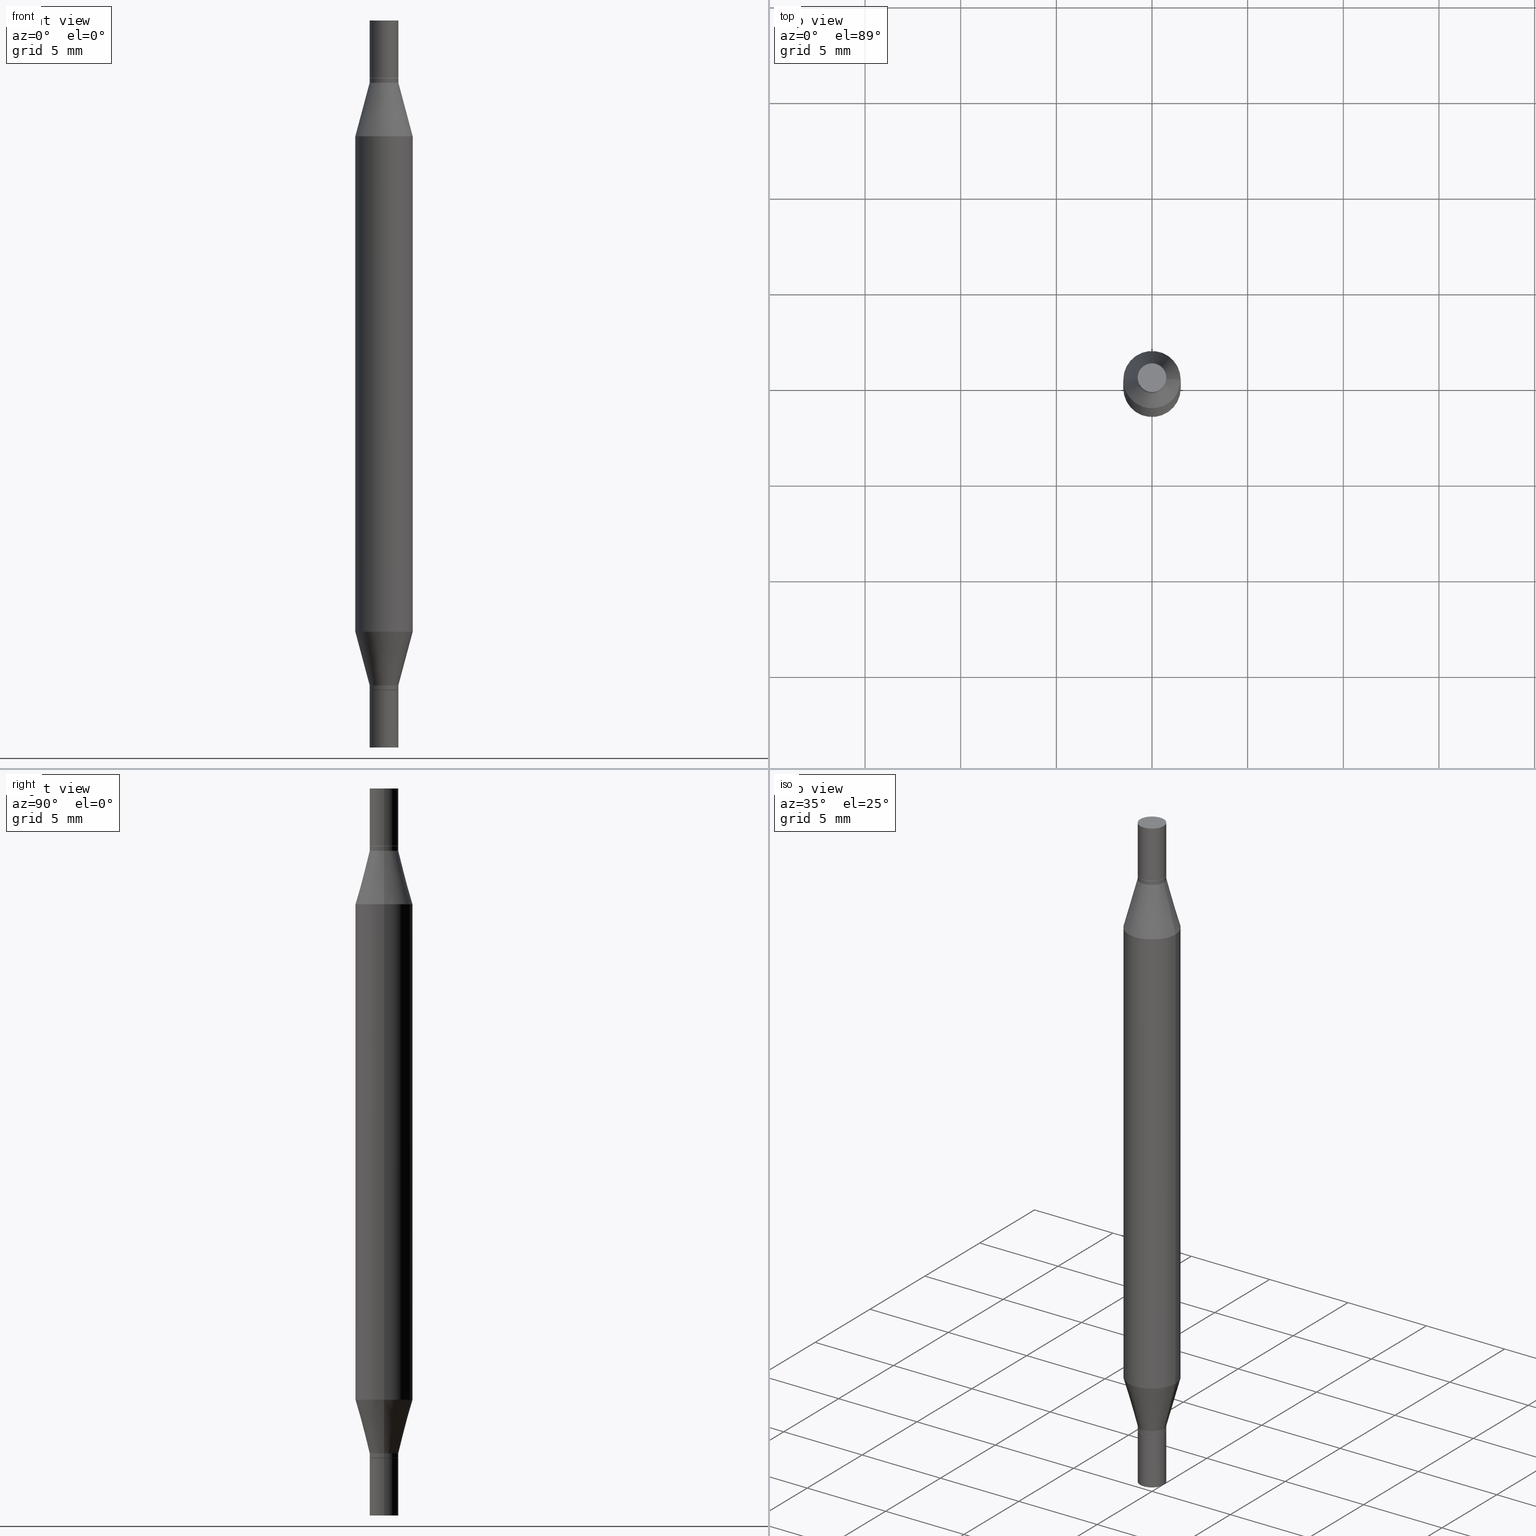
[diagram: canonical four-view strip — front | top / right | iso, engineering-drawing reading convention]
A machine part, canonical four-view strip (front | top / right | iso — engineering-drawing reading convention). The complete STEP part file that produces these views, byte-faithful:
ISO-10303-21;
HEADER;
FILE_DESCRIPTION (( 'STEP AP203' ),
    '1' );
FILE_NAME ('48885.STEP',
    '2024-03-04T16:10:25',
    ( '' ),
    ( '' ),
    'SwSTEP 2.0',
    'SolidWorks 2023',
    '' );
FILE_SCHEMA (( 'CONFIG_CONTROL_DESIGN' ));
ENDSEC;

DATA;
#1 = FACE_OUTER_BOUND ( 'NONE', #880, .T. ) ;
#2 = EDGE_CURVE ( 'NONE', #223, #951, #374, .T. ) ;
#3 = DIRECTION ( 'NONE',  ( 1.000000000000000000, -6.982962677686266711E-15, 0.000000000000000000 ) ) ;
#4 = EDGE_LOOP ( 'NONE', ( #640, #589, #967, #716 ) ) ;
#5 = DATE_AND_TIME ( #306, #460 ) ;
#6 = EDGE_CURVE ( 'NONE', #866, #291, #838, .T. ) ;
#7 = FACE_OUTER_BOUND ( 'NONE', #4, .T. ) ;
#8 = CARTESIAN_POINT ( 'NONE',  ( 0.05905000000000000526, -2.133815698935376609E-15, -0.7480499999999999927 ) ) ;
#9 = CIRCLE ( 'NONE', #24, 0.02954999999999999988 ) ;
#10 = DIRECTION ( 'NONE',  ( -2.445468806185136597E-29, -3.491805094961124077E-15, -1.000000000000000000 ) ) ;
#11 = DIRECTION ( 'NONE',  ( 1.000000000000000000, -6.982962677686266711E-15, 0.000000000000000000 ) ) ;
#12 = CARTESIAN_POINT ( 'NONE',  ( -0.02954999999999991661, -4.583140203546760956E-15, -1.368099999999999872 ) ) ;
#13 = CARTESIAN_POINT ( 'NONE',  ( 3.369856014923117948E-29, -4.121399959508538653E-16, -0.1181000000000000383 ) ) ;
#14 = CIRCLE ( 'NONE', #157, 0.02954999999999999988 ) ;
#15 = EDGE_LOOP ( 'NONE', ( #933, #192 ) ) ;
#16 = CIRCLE ( 'NONE', #602, 0.02954999999999992008 ) ;
#17 = DIRECTION ( 'NONE',  ( 0.7071067811865656694, -7.406779323393341342E-15, -0.7071067811865294761 ) ) ;
#18 = ORIENTED_EDGE ( 'NONE', *, *, #385, .T. ) ;
#19 = ADVANCED_FACE ( 'NONE', ( #465 ), #228, .T. ) ;
#20 = CARTESIAN_POINT ( 'NONE',  ( 3.076410765668156654E-29, -8.311408901143919011E-16, -0.2380954988232820146 ) ) ;
#21 = CARTESIAN_POINT ( 'NONE',  ( 3.368633280520025146E-29, -4.809515544256433236E-15, -1.377499999999999947 ) ) ;
#22 = ORIENTED_EDGE ( 'NONE', *, *, #214, .F. ) ;
#23 = FACE_OUTER_BOUND ( 'NONE', #200, .T. ) ;
#24 = AXIS2_PLACEMENT_3D ( 'NONE', #795, #726, #440 ) ;
#25 = CARTESIAN_POINT ( 'NONE',  ( 3.369856014923117948E-29, -4.811261284925853951E-15, -1.377999999999999892 ) ) ;
#26 = DIRECTION ( 'NONE',  ( 1.000000000000000000, -6.982962677686266711E-15, 2.260776888683160832E-33 ) ) ;
#27 = ORIENTED_EDGE ( 'NONE', *, *, #655, .T. ) ;
#28 = DIRECTION ( 'NONE',  ( -0.000000000000000000, -3.491643216902134830E-15, -1.000000000000000000 ) ) ;
#29 = CIRCLE ( 'NONE', #886, 0.02954999999999991661 ) ;
#30 = DIRECTION ( 'NONE',  ( 2.445468806185136597E-29, 3.491805094961124077E-15, 1.000000000000000000 ) ) ;
#31 = ADVANCED_FACE ( 'NONE', ( #150 ), #501, .T. ) ;
#32 = FACE_OUTER_BOUND ( 'NONE', #376, .T. ) ;
#33 = ADVANCED_FACE ( 'NONE', ( #846 ), #101, .T. ) ;
#34 = DIRECTION ( 'NONE',  ( 1.000000000000000000, -6.982962677686280910E-15, 0.000000000000000000 ) ) ;
#35 = EDGE_CURVE ( 'NONE', #328, #309, #315, .T. ) ;
#36 = ORIENTED_EDGE ( 'NONE', *, *, #885, .T. ) ;
#37 = CYLINDRICAL_SURFACE ( 'NONE', #641, 0.02954999999999992008 ) ;
#38 = VERTEX_POINT ( 'NONE', #397 ) ;
#39 = LENGTH_MEASURE_WITH_UNIT ( LENGTH_MEASURE( 0.02539999999999999897 ), #794 );
#40 = DIRECTION ( 'NONE',  ( 1.000000000000000000, -6.982962677686261977E-15, 0.000000000000000000 ) ) ;
#41 = EDGE_CURVE ( 'NONE', #715, #503, #194, .T. ) ;
#42 = AXIS2_PLACEMENT_3D ( 'NONE', #204, #666, #40 ) ;
#43 = ORIENTED_EDGE ( 'NONE', *, *, #814, .F. ) ;
#44 = AXIS2_PLACEMENT_3D ( 'NONE', #621, #243, #697 ) ;
#45 = DIRECTION ( 'NONE',  ( 0.2588190451025213501, -5.180148453816008779E-15, -0.9659258262890682012 ) ) ;
#46 = AXIS2_PLACEMENT_3D ( 'NONE', #543, #92, #552 ) ;
#47 = VERTEX_POINT ( 'NONE', #514 ) ;
#48 = LINE ( 'NONE', #741, #148 ) ;
#49 = EDGE_CURVE ( 'NONE', #291, #115, #455, .T. ) ;
#50 = EDGE_LOOP ( 'NONE', ( #892, #43, #654, #36 ) ) ;
#51 = EDGE_LOOP ( 'NONE', ( #53, #292, #815, #421 ) ) ;
#52 = CARTESIAN_POINT ( 'NONE',  ( -0.02954999999999999988, -5.021119700973134755E-15, -1.496099999999999985 ) ) ;
#53 = ORIENTED_EDGE ( 'NONE', *, *, #847, .F. ) ;
#54 = ORIENTED_EDGE ( 'NONE', *, *, #370, .T. ) ;
#55 = CARTESIAN_POINT ( 'NONE',  ( 0.000000000000000000, 0.000000000000000000, 0.000000000000000000 ) ) ;
#56 = ORIENTED_EDGE ( 'NONE', *, *, #717, .F. ) ;
#57 = EDGE_CURVE ( 'NONE', #646, #715, #9, .T. ) ;
#58 = ORIENTED_EDGE ( 'NONE', *, *, #529, .T. ) ;
#59 = CONICAL_SURFACE ( 'NONE', #525, 0.02904999999999999596, 0.7853981633974739252 ) ;
#60 = DIRECTION ( 'NONE',  ( -0.000000000000000000, -3.491643216902134830E-15, -1.000000000000000000 ) ) ;
#61 = FACE_OUTER_BOUND ( 'NONE', #197, .T. ) ;
#62 = ORIENTED_EDGE ( 'NONE', *, *, #898, .F. ) ;
#63 = COORDINATED_UNIVERSAL_TIME_OFFSET ( 5, 0, .BEHIND. ) ;
#64 = ADVANCED_BREP_SHAPE_REPRESENTATION ( '48885', ( #732, #65, #391, #388, #383, #961 ), #187 ) ;
#65 = MANIFOLD_SOLID_BREP ( 'Mirror1[1]', #923 ) ;
#66 = LINE ( 'NONE', #141, #711 ) ;
#67 = EDGE_LOOP ( 'NONE', ( #875, #731, #968, #425 ) ) ;
#68 = CARTESIAN_POINT ( 'NONE',  ( 0.02954999999999999988, -5.429951778168858482E-15, -1.496099999999999985 ) ) ;
#69 = AXIS2_PLACEMENT_3D ( 'NONE', #87, #685, #11 ) ;
#70 = LINE ( 'NONE', #971, #916 ) ;
#71 = EDGE_LOOP ( 'NONE', ( #574, #728, #360, #159 ) ) ;
#72 = APPROVAL_STATUS ( 'not_yet_approved' ) ;
#73 = APPROVAL ( #973, 'UNSPECIFIED' ) ;
#74 = CIRCLE ( 'NONE', #976, 0.02954999999999999988 ) ;
#75 = FACE_OUTER_BOUND ( 'NONE', #818, .T. ) ;
#76 = AXIS2_PLACEMENT_3D ( 'NONE', #185, #725, #713 ) ;
#77 = CARTESIAN_POINT ( 'NONE',  ( 2.063465471256628659E-16, 0.02954999999999958701, -0.1181000000000003020 ) ) ;
#78 = ORIENTED_EDGE ( 'NONE', *, *, #717, .T. ) ;
#79 = EDGE_CURVE ( 'NONE', #38, #887, #48, .T. ) ;
#80 = COORDINATED_UNIVERSAL_TIME_OFFSET ( 5, 0, .BEHIND. ) ;
#81 = CARTESIAN_POINT ( 'NONE',  ( -0.02954999999999999988, 2.099653784171096041E-16, -1.453545319170324550E-30 ) ) ;
#82 = CARTESIAN_POINT ( 'NONE',  ( 1.829332940466791194E-29, -2.611802615521614830E-15, -0.7480499999999999927 ) ) ;
#83 = CARTESIAN_POINT ( 'NONE',  ( 0.000000000000000000, 0.000000000000000000, 0.000000000000000000 ) ) ;
#84 = DIRECTION ( 'NONE',  ( 1.000000000000000000, 0.000000000000000000, 0.000000000000000000 ) ) ;
#85 = DIRECTION ( 'NONE',  ( 1.000000000000000000, -6.982962677686265922E-15, 4.876176775795935793E-29 ) ) ;
#86 = CARTESIAN_POINT ( 'NONE',  ( -0.02954999999999992008, 2.099653784171090371E-16, -1.453545319170320697E-30 ) ) ;
#87 = CARTESIAN_POINT ( 'NONE',  ( 3.369856014923117948E-29, -4.121399959508538653E-16, -0.1181000000000000383 ) ) ;
#88 = EDGE_CURVE ( 'NONE', #38, #599, #277, .T. ) ;
#89 = DIRECTION ( 'NONE',  ( 1.000000000000000000, -6.982962677686266711E-15, 0.000000000000000000 ) ) ;
#90 = ORIENTED_EDGE ( 'NONE', *, *, #635, .F. ) ;
#91 = AXIS2_PLACEMENT_3D ( 'NONE', #258, #869, #34 ) ;
#92 = DIRECTION ( 'NONE',  ( -2.445468806185136597E-29, -3.491805094961124077E-15, -1.000000000000000000 ) ) ;
#93 = AXIS2_PLACEMENT_3D ( 'NONE', #974, #518, #746 ) ;
#94 = DIRECTION ( 'NONE',  ( 2.445468806185136597E-29, 3.491805094961124077E-15, 1.000000000000000000 ) ) ;
#95 = CYLINDRICAL_SURFACE ( 'NONE', #44, 0.02954999999999999988 ) ;
#96 = ORIENTED_EDGE ( 'NONE', *, *, #139, .F. ) ;
#97 = CARTESIAN_POINT ( 'NONE',  ( 0.05904999999999999832, -4.804643186156564878E-15, -1.258004501176717804 ) ) ;
#98 = DIRECTION ( 'NONE',  ( 1.000000000000000000, -6.982962677686278543E-15, 0.000000000000000000 ) ) ;
#99 = DIRECTION ( 'NONE',  ( 2.445468806185136597E-29, 3.491805094961124077E-15, 1.000000000000000000 ) ) ;
#100 = DIRECTION ( 'NONE',  ( 2.445468806185136597E-29, 3.491805094961124077E-15, 1.000000000000000000 ) ) ;
#101 = CONICAL_SURFACE ( 'NONE', #69, 0.02904999999999999596, 0.7853981633974739252 ) ;
#102 = EDGE_CURVE ( 'NONE', #351, #223, #816, .T. ) ;
#103 = ADVANCED_FACE ( 'NONE', ( #879 ), #357, .T. ) ;
#104 = PLANE ( 'NONE',  #554 ) ;
#105 = VERTEX_POINT ( 'NONE', #497 ) ;
#106 = CC_DESIGN_APPROVAL ( #73, ( #378 ) ) ;
#107 = FACE_OUTER_BOUND ( 'NONE', #734, .T. ) ;
#108 = SHAPE_DEFINITION_REPRESENTATION ( #500, #64 ) ;
#109 = CIRCLE ( 'NONE', #173, 0.02954999999999992008 ) ;
#110 = EDGE_CURVE ( 'NONE', #895, #412, #687, .T. ) ;
#111 = VECTOR ( 'NONE', #452, 39.37007874015748143 ) ;
#112 = CARTESIAN_POINT ( 'NONE',  ( -0.02904999999999999596, -2.120003558898884021E-16, -0.1181000000000000383 ) ) ;
#113 = FACE_OUTER_BOUND ( 'NONE', #15, .T. ) ;
#114 = CARTESIAN_POINT ( 'NONE',  ( -0.02954999999999992008, -2.111581826641858869E-16, -0.1185999999999999277 ) ) ;
#115 = VERTEX_POINT ( 'NONE', #587 ) ;
#116 = LINE ( 'NONE', #805, #615 ) ;
#117 = CARTESIAN_POINT ( 'NONE',  ( 3.369856014923117948E-29, -4.121399959508538653E-16, -0.1181000000000000383 ) ) ;
#118 = CARTESIAN_POINT ( 'NONE',  ( -0.05904999999999999832, -2.206690208753205272E-15, -1.258004501176717804 ) ) ;
#119 = EDGE_LOOP ( 'NONE', ( #96, #382 ) ) ;
#120 = EDGE_CURVE ( 'NONE', #567, #941, #199, .T. ) ;
#121 = DIRECTION ( 'NONE',  ( 1.000000000000000000, -6.982962677686265133E-15, 0.000000000000000000 ) ) ;
#122 = ORIENTED_EDGE ( 'NONE', *, *, #739, .T. ) ;
#123 = CIRCLE ( 'NONE', #443, 0.02904999999999999596 ) ;
#124 = EDGE_LOOP ( 'NONE', ( #504, #434, #691, #747 ) ) ;
#125 = CARTESIAN_POINT ( 'NONE',  ( 3.511072290881696114E-29, -2.111202356957007455E-16, 0.000000000000000000 ) ) ;
#126 = CARTESIAN_POINT ( 'NONE',  ( 3.658665880933582389E-29, -5.223605231043229660E-15, -1.496099999999999985 ) ) ;
#127 = VERTEX_POINT ( 'NONE', #130 ) ;
#128 = VERTEX_POINT ( 'NONE', #893 ) ;
#129 = DIRECTION ( 'NONE',  ( 1.000000000000000000, -6.982962677686273021E-15, 0.000000000000000000 ) ) ;
#130 = CARTESIAN_POINT ( 'NONE',  ( -0.02954999999999999988, -4.807467879567433237E-15, -1.377999999999999892 ) ) ;
#131 = ORIENTED_EDGE ( 'NONE', *, *, #739, .F. ) ;
#132 = EDGE_CURVE ( 'NONE', #763, #503, #484, .T. ) ;
#133 = AXIS2_PLACEMENT_3D ( 'NONE', #959, #884, #952 ) ;
#134 = ORIENTED_EDGE ( 'NONE', *, *, #535, .F. ) ;
#135 = CC_DESIGN_DATE_AND_TIME_ASSIGNMENT ( #454, #450, ( #843 ) ) ;
#136 = DIRECTION ( 'NONE',  ( -2.445468806185136877E-29, -3.491805094961123683E-15, -1.000000000000000000 ) ) ;
#137 = DIRECTION ( 'NONE',  ( -0.7071067811865656694, 7.493145998870420424E-15, 0.7071067811865294761 ) ) ;
#138 = ORIENTED_EDGE ( 'NONE', *, *, #769, .F. ) ;
#139 = EDGE_CURVE ( 'NONE', #412, #895, #928, .T. ) ;
#140 = CIRCLE ( 'NONE', #189, 0.02954999999999992008 ) ;
#141 = CARTESIAN_POINT ( 'NONE',  ( -0.02904999999999999596, -4.604848620187545492E-15, -1.377999999999999892 ) ) ;
#142 = ORIENTED_EDGE ( 'NONE', *, *, #2, .T. ) ;
#143 = APPROVAL_STATUS ( 'not_yet_approved' ) ;
#144 = PERSON ( 'UNSPECIFIED', 'UNSPECIFIED', 'UNSPECIFIED', ('UNSPECIFIED'), ('UNSPECIFIED'), ('UNSPECIFIED') ) ;
#145 = CARTESIAN_POINT ( 'NONE',  ( 2.063465471256628659E-16, 0.02954999999999958701, -0.1181000000000003020 ) ) ;
#146 = ORIENTED_EDGE ( 'NONE', *, *, #316, .T. ) ;
#147 = CALENDAR_DATE ( 2024, 4, 3 ) ;
#148 = VECTOR ( 'NONE', #270, 39.37007874015748143 ) ;
#149 = DIRECTION ( 'NONE',  ( -0.2588190451025213501, -1.597197180879714326E-15, -0.9659258262890682012 ) ) ;
#150 = FACE_OUTER_BOUND ( 'NONE', #67, .T. ) ;
#151 = APPROVAL_DATE_TIME ( #614, #562 ) ;
#152 = CIRCLE ( 'NONE', #93, 0.02954999999999991661 ) ;
#153 = AXIS2_PLACEMENT_3D ( 'NONE', #117, #807, #423 ) ;
#154 = AXIS2_PLACEMENT_3D ( 'NONE', #387, #611, #89 ) ;
#155 = CYLINDRICAL_SURFACE ( 'NONE', #722, 0.02954999999999992008 ) ;
#156 = AXIS2_PLACEMENT_3D ( 'NONE', #909, #929, #863 ) ;
#157 = AXIS2_PLACEMENT_3D ( 'NONE', #719, #890, #345 ) ;
#158 = DIRECTION ( 'NONE',  ( -2.445468806185136877E-29, 3.491481338843145188E-15, 1.000000000000000000 ) ) ;
#159 = ORIENTED_EDGE ( 'NONE', *, *, #655, .F. ) ;
#160 = PERSON_AND_ORGANIZATION ( #144, #708 ) ;
#161 = DIRECTION ( 'NONE',  ( 2.445468806185136597E-29, 3.491805094961124077E-15, 1.000000000000000000 ) ) ;
#162 = EDGE_LOOP ( 'NONE', ( #619, #430 ) ) ;
#163 = EDGE_CURVE ( 'NONE', #856, #951, #737, .T. ) ;
#164 = CARTESIAN_POINT ( 'NONE',  ( 3.345645873741884627E-29, -4.467088663909703532E-16, -0.1280000000000001137 ) ) ;
#165 = CARTESIAN_POINT ( 'NONE',  ( 3.076410765668156654E-29, -4.392299240039190746E-15, -1.258004501176717804 ) ) ;
#166 = ORIENTED_EDGE ( 'NONE', *, *, #239, .T. ) ;
#167 = CARTESIAN_POINT ( 'NONE',  ( -0.02904999999999999596, -2.128425291155909173E-16, -0.1181000000000000383 ) ) ;
#168 = ORIENTED_EDGE ( 'NONE', *, *, #132, .F. ) ;
#169 = CARTESIAN_POINT ( 'NONE',  ( -0.05905000000000000526, -4.818735010038875060E-15, -1.496099999999999985 ) ) ;
#170 = DIRECTION ( 'NONE',  ( -2.438088387897960049E-29, 3.491481338843145188E-15, 1.000000000000000000 ) ) ;
#171 = CC_DESIGN_APPROVAL ( #633, ( #657 ) ) ;
#172 = ORIENTED_EDGE ( 'NONE', *, *, #847, .T. ) ;
#173 = AXIS2_PLACEMENT_3D ( 'NONE', #186, #176, #945 ) ;
#174 = CARTESIAN_POINT ( 'NONE',  ( 3.345645873741884627E-29, -4.467088663909703532E-16, -0.1280000000000001137 ) ) ;
#175 = AXIS2_PLACEMENT_3D ( 'NONE', #125, #344, #785 ) ;
#176 = DIRECTION ( 'NONE',  ( 2.445468806185136597E-29, 3.491805094961124077E-15, 1.000000000000000000 ) ) ;
#177 = DIRECTION ( 'NONE',  ( -2.445468806185136597E-29, 3.491481338843145583E-15, 1.000000000000000000 ) ) ;
#178 = ADVANCED_FACE ( 'NONE', ( #293 ), #507, .F. ) ;
#179 = DIRECTION ( 'NONE',  ( 1.000000000000000000, -6.982962677686265133E-15, 0.000000000000000000 ) ) ;
#180 = EDGE_CURVE ( 'NONE', #127, #442, #14, .T. ) ;
#181 = CARTESIAN_POINT ( 'NONE',  ( -0.02954999999999992008, -2.111581826641858869E-16, -0.1185999999999999277 ) ) ;
#182 = ORIENTED_EDGE ( 'NONE', *, *, #352, .F. ) ;
#183 = ADVANCED_FACE ( 'NONE', ( #644 ), #210, .T. ) ;
#184 = CLOSED_SHELL ( 'NONE', ( #183, #433, #629, #942 ) ) ;
#185 = CARTESIAN_POINT ( 'NONE',  ( 3.511072290881696114E-29, -2.111202356957007455E-16, 0.000000000000000000 ) ) ;
#186 = CARTESIAN_POINT ( 'NONE',  ( 3.368633280520025146E-29, -4.138858984983355777E-16, -0.1185999999999999277 ) ) ;
#187 =( GEOMETRIC_REPRESENTATION_CONTEXT ( 3 ) GLOBAL_UNCERTAINTY_ASSIGNED_CONTEXT ( ( #954 ) ) GLOBAL_UNIT_ASSIGNED_CONTEXT ( ( #643, #943, #799 ) ) REPRESENTATION_CONTEXT ( 'NONE', 'WORKASPACE' ) );
#188 = CARTESIAN_POINT ( 'NONE',  ( 0.02904999999999999596, -6.149950617376399263E-16, -0.1181000000000000383 ) ) ;
#189 = AXIS2_PLACEMENT_3D ( 'NONE', #566, #30, #342 ) ;
#190 = AXIS2_PLACEMENT_3D ( 'NONE', #308, #901, #348 ) ;
#191 = DIRECTION ( 'NONE',  ( 1.000000000000000000, -6.982962677686266711E-15, 0.000000000000000000 ) ) ;
#192 = ORIENTED_EDGE ( 'NONE', *, *, #881, .T. ) ;
#193 = CARTESIAN_POINT ( 'NONE',  ( -0.02954999999999992008, -5.021119700973135544E-15, -1.496099999999999985 ) ) ;
#194 = LINE ( 'NONE', #517, #201 ) ;
#195 = DIRECTION ( 'NONE',  ( -2.445468806185136597E-29, 3.491481338843145583E-15, 1.000000000000000000 ) ) ;
#196 = EDGE_CURVE ( 'NONE', #941, #362, #447, .T. ) ;
#197 = EDGE_LOOP ( 'NONE', ( #950, #738, #877, #822 ) ) ;
#198 = DIRECTION ( 'NONE',  ( -2.438088387897959208E-29, -3.491805094961123683E-15, -1.000000000000000000 ) ) ;
#199 = LINE ( 'NONE', #811, #956 ) ;
#200 = EDGE_LOOP ( 'NONE', ( #56, #957, #798, #668 ) ) ;
#201 = VECTOR ( 'NONE', #136, 39.37007874015748143 ) ;
#202 = EDGE_LOOP ( 'NONE', ( #295, #784, #789, #285 ) ) ;
#203 = PLANE ( 'NONE',  #630 ) ;
#204 = CARTESIAN_POINT ( 'NONE',  ( 3.658665880933582389E-29, -5.223605231043229660E-15, -1.496099999999999985 ) ) ;
#205 = CONICAL_SURFACE ( 'NONE', #476, 0.02954999999999991661, 0.2617993877991500740 ) ;
#206 = AXIS2_PLACEMENT_3D ( 'NONE', #474, #10, #247 ) ;
#207 = VERTEX_POINT ( 'NONE', #649 ) ;
#208 = CARTESIAN_POINT ( 'NONE',  ( -0.02954999999999999988, -3.221189259251762717E-18, -0.1181000000000000383 ) ) ;
#209 = EDGE_CURVE ( 'NONE', #515, #547, #275, .T. ) ;
#210 = CYLINDRICAL_SURFACE ( 'NONE', #271, 0.02954999999999999988 ) ;
#211 = ORIENTED_EDGE ( 'NONE', *, *, #906, .T. ) ;
#212 = ORIENTED_EDGE ( 'NONE', *, *, #163, .F. ) ;
#213 = CARTESIAN_POINT ( 'NONE',  ( 3.368633280520025146E-29, -4.809515544256433236E-15, -1.377499999999999947 ) ) ;
#214 = EDGE_CURVE ( 'NONE', #897, #953, #935, .T. ) ;
#215 = DIRECTION ( 'NONE',  ( 2.445468806185136597E-29, 3.491805094961124077E-15, 1.000000000000000000 ) ) ;
#216 = ORIENTED_EDGE ( 'NONE', *, *, #492, .T. ) ;
#217 = LINE ( 'NONE', #441, #744 ) ;
#218 = ORIENTED_EDGE ( 'NONE', *, *, #57, .F. ) ;
#219 = PERSON_AND_ORGANIZATION_ROLE ( 'creator' ) ;
#220 = AXIS2_PLACEMENT_3D ( 'NONE', #639, #720, #289 ) ;
#221 = AXIS2_PLACEMENT_3D ( 'NONE', #695, #161, #690 ) ;
#222 = CARTESIAN_POINT ( 'NONE',  ( 0.02954999999999999988, -2.061043613615753919E-16, 6.680595706058740339E-35 ) ) ;
#223 = VERTEX_POINT ( 'NONE', #208 ) ;
#224 = CIRCLE ( 'NONE', #754, 0.05904999999999999832 ) ;
#225 = ADVANCED_FACE ( 'NONE', ( #446 ), #290, .T. ) ;
#226 = DIRECTION ( 'NONE',  ( 1.000000000000000000, -6.982962677686266711E-15, 0.000000000000000000 ) ) ;
#227 = CARTESIAN_POINT ( 'NONE',  ( 0.02904999999999999596, -5.014116350712640554E-15, -1.377999999999999892 ) ) ;
#228 = CYLINDRICAL_SURFACE ( 'NONE', #652, 0.02954999999999992008 ) ;
#229 = PERSON_AND_ORGANIZATION ( #144, #708 ) ;
#230 = CYLINDRICAL_SURFACE ( 'NONE', #236, 0.02954999999999999988 ) ;
#231 = DIRECTION ( 'NONE',  ( -2.445468806185136597E-29, -3.491805094961124077E-15, -1.000000000000000000 ) ) ;
#232 = DIRECTION ( 'NONE',  ( 2.445468806185136597E-29, 3.491805094961124077E-15, 1.000000000000000000 ) ) ;
#233 = DIRECTION ( 'NONE',  ( 1.000000000000000000, -6.982962677686278543E-15, 0.000000000000000000 ) ) ;
#234 = CC_DESIGN_APPROVAL ( #562, ( #843 ) ) ;
#235 = DIRECTION ( 'NONE',  ( 1.000000000000000000, -6.982962677686281699E-15, 0.000000000000000000 ) ) ;
#236 = AXIS2_PLACEMENT_3D ( 'NONE', #903, #832, #541 ) ;
#237 = CARTESIAN_POINT ( 'NONE',  ( 0.02954999999999991661, -6.530554135165988789E-16, -0.1280000000000001137 ) ) ;
#238 = VECTOR ( 'NONE', #667, 39.37007874015747433 ) ;
#239 = EDGE_CURVE ( 'NONE', #897, #328, #451, .T. ) ;
#240 = CARTESIAN_POINT ( 'NONE',  ( 3.369856014923117948E-29, -4.121399959508538653E-16, -0.1181000000000000383 ) ) ;
#241 = DIRECTION ( 'NONE',  ( -2.445468806185136877E-29, -3.491805094961123683E-15, -1.000000000000000000 ) ) ;
#242 = CALENDAR_DATE ( 2024, 4, 3 ) ;
#243 = DIRECTION ( 'NONE',  ( -2.445468806185136597E-29, -3.491805094961124077E-15, -1.000000000000000000 ) ) ;
#244 = DIRECTION ( 'NONE',  ( 1.000000000000000000, -6.982962677686266711E-15, 0.000000000000000000 ) ) ;
#245 = EDGE_LOOP ( 'NONE', ( #712, #481 ) ) ;
#246 = LINE ( 'NONE', #556, #333 ) ;
#247 = DIRECTION ( 'NONE',  ( 1.000000000000000000, -6.982962677686272233E-15, 0.000000000000000000 ) ) ;
#248 = CARTESIAN_POINT ( 'NONE',  ( 0.000000000000000000, -5.223847416807283040E-15, -1.496099999999999985 ) ) ;
#249 = CARTESIAN_POINT ( 'NONE',  ( 3.345645873741884627E-29, -4.467088663909703532E-16, -0.1280000000000001137 ) ) ;
#250 = ORIENTED_EDGE ( 'NONE', *, *, #532, .F. ) ;
#251 = CIRCLE ( 'NONE', #600, 0.02954999999999999988 ) ;
#252 = LINE ( 'NONE', #167, #321 ) ;
#253 = CC_DESIGN_PERSON_AND_ORGANIZATION_ASSIGNMENT ( #373, #840, ( #939 ) ) ;
#254 = CONICAL_SURFACE ( 'NONE', #804, 0.02904999999999999596, 0.7853981633974739252 ) ;
#255 = DIRECTION ( 'NONE',  ( 1.000000000000000000, -6.982962677686278543E-15, 0.000000000000000000 ) ) ;
#256 = EDGE_CURVE ( 'NONE', #887, #672, #224, .T. ) ;
#257 = CARTESIAN_POINT ( 'NONE',  ( 3.345645873741884627E-29, -4.467088663909703532E-16, -0.1280000000000001137 ) ) ;
#258 = CARTESIAN_POINT ( 'NONE',  ( 0.000000000000000000, -5.223847416807283040E-15, -1.496099999999999985 ) ) ;
#259 = ORIENTED_EDGE ( 'NONE', *, *, #393, .T. ) ;
#260 = AXIS2_PLACEMENT_3D ( 'NONE', #126, #280, #366 ) ;
#261 = DIRECTION ( 'NONE',  ( 1.000000000000000000, -6.982962677686265922E-15, 2.260776888683160832E-33 ) ) ;
#262 = EDGE_CURVE ( 'NONE', #47, #681, #767, .T. ) ;
#263 = ORIENTED_EDGE ( 'NONE', *, *, #214, .T. ) ;
#264 = CC_DESIGN_SECURITY_CLASSIFICATION ( #657, ( #378 ) ) ;
#265 = PLANE ( 'NONE',  #175 ) ;
#266 = CIRCLE ( 'NONE', #819, 0.02904999999999999596 ) ;
#267 = ADVANCED_FACE ( 'NONE', ( #380 ), #849, .T. ) ;
#268 = VECTOR ( 'NONE', #704, 39.37007874015748143 ) ;
#269 = ORIENTED_EDGE ( 'NONE', *, *, #881, .F. ) ;
#270 = DIRECTION ( 'NONE',  ( -2.445468806185136877E-29, -3.491805094961123683E-15, -1.000000000000000000 ) ) ;
#271 = AXIS2_PLACEMENT_3D ( 'NONE', #55, #949, #361 ) ;
#272 = EDGE_LOOP ( 'NONE', ( #975, #850, #675, #138 ) ) ;
#273 = ORIENTED_EDGE ( 'NONE', *, *, #385, .F. ) ;
#274 = CARTESIAN_POINT ( 'NONE',  ( 3.369856014923117948E-29, -4.121399959508538653E-16, -0.1181000000000000383 ) ) ;
#275 = LINE ( 'NONE', #578, #513 ) ;
#276 = ORIENTED_EDGE ( 'NONE', *, *, #688, .T. ) ;
#277 = CIRCLE ( 'NONE', #868, 0.05904999999999999832 ) ;
#278 = ADVANCED_FACE ( 'NONE', ( #327 ), #155, .T. ) ;
#279 = ORIENTED_EDGE ( 'NONE', *, *, #700, .T. ) ;
#280 = DIRECTION ( 'NONE',  ( -2.445468806185136597E-29, 3.491481338843145583E-15, 1.000000000000000000 ) ) ;
#281 = ADVANCED_FACE ( 'NONE', ( #75 ), #742, .T. ) ;
#282 = LOCAL_TIME ( 11, 10, 25.00000000000000000, #80 ) ;
#283 = ORIENTED_EDGE ( 'NONE', *, *, #885, .F. ) ;
#284 = CIRCLE ( 'NONE', #364, 0.02954999999999991661 ) ;
#285 = ORIENTED_EDGE ( 'NONE', *, *, #180, .F. ) ;
#286 = EDGE_CURVE ( 'NONE', #362, #941, #802, .T. ) ;
#287 = DIRECTION ( 'NONE',  ( 2.445468806185136597E-29, 3.491805094961124077E-15, 1.000000000000000000 ) ) ;
#288 = CARTESIAN_POINT ( 'NONE',  ( 0.02954999999999999988, -5.430193963932912651E-15, -1.496099999999999985 ) ) ;
#289 = DIRECTION ( 'NONE',  ( 1.000000000000000000, -6.982962677686265133E-15, 0.000000000000000000 ) ) ;
#290 = CONICAL_SURFACE ( 'NONE', #494, 0.02954999999999991661, 0.2617993877991500740 ) ;
#291 = VERTEX_POINT ( 'NONE', #8 ) ;
#292 = ORIENTED_EDGE ( 'NONE', *, *, #700, .F. ) ;
#293 = FACE_OUTER_BOUND ( 'NONE', #585, .T. ) ;
#294 = DIRECTION ( 'NONE',  ( 2.438088387897959208E-29, 3.491805094961123683E-15, 1.000000000000000000 ) ) ;
#295 = ORIENTED_EDGE ( 'NONE', *, *, #370, .F. ) ;
#296 = PERSON_AND_ORGANIZATION ( #144, #708 ) ;
#297 = CARTESIAN_POINT ( 'NONE',  ( 3.345645873741884627E-29, -4.776695619671307391E-15, -1.368099999999999872 ) ) ;
#298 = CARTESIAN_POINT ( 'NONE',  ( 3.369856014923117948E-29, -4.121399959508538653E-16, -0.1181000000000000383 ) ) ;
#299 = ORIENTED_EDGE ( 'NONE', *, *, #586, .T. ) ;
#300 = EDGE_CURVE ( 'NONE', #105, #515, #693, .T. ) ;
#301 = COORDINATED_UNIVERSAL_TIME_OFFSET ( 5, 0, .BEHIND. ) ;
#302 = VECTOR ( 'NONE', #786, 39.37007874015748143 ) ;
#303 = CIRCLE ( 'NONE', #662, 0.02954999999999991661 ) ;
#304 = CYLINDRICAL_SURFACE ( 'NONE', #724, 0.05905000000000000526 ) ;
#305 = ORIENTED_EDGE ( 'NONE', *, *, #677, .F. ) ;
#306 = CALENDAR_DATE ( 2024, 4, 3 ) ;
#307 = PLANE ( 'NONE',  #379 ) ;
#308 = CARTESIAN_POINT ( 'NONE',  ( 0.000000000000000000, -5.223847416807283040E-15, -1.496099999999999985 ) ) ;
#309 = VERTEX_POINT ( 'NONE', #237 ) ;
#310 = CALENDAR_DATE ( 2024, 4, 3 ) ;
#311 = CARTESIAN_POINT ( 'NONE',  ( 3.345645873741884627E-29, -4.776695619671307391E-15, -1.368099999999999872 ) ) ;
#312 = ADVANCED_FACE ( 'NONE', ( #542 ), #468, .T. ) ;
#313 = DIRECTION ( 'NONE',  ( -2.445468806185136877E-29, 3.491481338843145188E-15, 1.000000000000000000 ) ) ;
#314 = CARTESIAN_POINT ( 'NONE',  ( 0.02954999999999999988, -6.184865430764830320E-16, -0.1181000000000000383 ) ) ;
#315 = LINE ( 'NONE', #613, #422 ) ;
#316 = EDGE_CURVE ( 'NONE', #105, #439, #624, .T. ) ;
#317 = APPROVAL_PERSON_ORGANIZATION ( #899, #73, #609 ) ;
#318 = CIRCLE ( 'NONE', #413, 0.02954999999999999988 ) ;
#319 = CARTESIAN_POINT ( 'NONE',  ( 0.000000000000000000, 0.000000000000000000, 0.000000000000000000 ) ) ;
#320 = EDGE_CURVE ( 'NONE', #672, #887, #508, .T. ) ;
#321 = VECTOR ( 'NONE', #400, 39.37007874015748143 ) ;
#322 = CARTESIAN_POINT ( 'NONE',  ( -0.02954999999999992008, -5.021119700973135544E-15, -1.496099999999999985 ) ) ;
#323 = VERTEX_POINT ( 'NONE', #12 ) ;
#324 = FACE_OUTER_BOUND ( 'NONE', #830, .T. ) ;
#325 = DIRECTION ( 'NONE',  ( -2.445468806185136597E-29, 3.491481338843145583E-15, 1.000000000000000000 ) ) ;
#326 = CARTESIAN_POINT ( 'NONE',  ( 3.511072290881696114E-29, -5.434967652502984328E-15, -1.496099999999999985 ) ) ;
#327 = FACE_OUTER_BOUND ( 'NONE', #50, .T. ) ;
#328 = VERTEX_POINT ( 'NONE', #679 ) ;
#329 = CYLINDRICAL_SURFACE ( 'NONE', #46, 0.05905000000000000526 ) ;
#330 = EDGE_CURVE ( 'NONE', #412, #442, #926, .T. ) ;
#331 = DIRECTION ( 'NONE',  ( -2.445468806185136877E-29, -3.491805094961123683E-15, -1.000000000000000000 ) ) ;
#332 = EDGE_LOOP ( 'NONE', ( #559, #650, #580, #470 ) ) ;
#333 = VECTOR ( 'NONE', #765, 39.37007874015748143 ) ;
#334 = DIRECTION ( 'NONE',  ( 2.438088387897960049E-29, -3.491481338843145188E-15, -1.000000000000000000 ) ) ;
#335 = AXIS2_PLACEMENT_3D ( 'NONE', #145, #598, #817 ) ;
#336 = LINE ( 'NONE', #169, #873 ) ;
#337 = CARTESIAN_POINT ( 'NONE',  ( -0.02904999999999999596, -2.120003558898884021E-16, -0.1181000000000000383 ) ) ;
#338 = FACE_OUTER_BOUND ( 'NONE', #522, .T. ) ;
#339 = ORIENTED_EDGE ( 'NONE', *, *, #486, .F. ) ;
#340 = ADVANCED_FACE ( 'NONE', ( #324 ), #95, .T. ) ;
#341 = DIRECTION ( 'NONE',  ( 0.000000000000000000, 3.491643216902134435E-15, 1.000000000000000000 ) ) ;
#342 = DIRECTION ( 'NONE',  ( 1.000000000000000000, -6.982962677686264344E-15, 0.000000000000000000 ) ) ;
#343 = EDGE_LOOP ( 'NONE', ( #273, #778, #142, #212 ) ) ;
#344 = DIRECTION ( 'NONE',  ( -2.438088387897959208E-29, -3.491805094961123683E-15, -1.000000000000000000 ) ) ;
#345 = DIRECTION ( 'NONE',  ( 1.000000000000000000, -6.982962677686261977E-15, 0.000000000000000000 ) ) ;
#346 = AXIS2_PLACEMENT_3D ( 'NONE', #896, #966, #894 ) ;
#347 = ORIENTED_EDGE ( 'NONE', *, *, #836, .F. ) ;
#348 = DIRECTION ( 'NONE',  ( 1.000000000000000000, -6.982962677686261977E-15, 0.000000000000000000 ) ) ;
#349 = ORIENTED_EDGE ( 'NONE', *, *, #520, .F. ) ;
#350 = DIRECTION ( 'NONE',  ( 1.000000000000000000, -6.982962677686265922E-15, 0.000000000000000000 ) ) ;
#351 = VERTEX_POINT ( 'NONE', #921 ) ;
#352 = EDGE_CURVE ( 'NONE', #941, #429, #246, .T. ) ;
#353 = DIMENSIONAL_EXPONENTS ( 1.000000000000000000, 0.000000000000000000, 0.000000000000000000, 0.000000000000000000, 0.000000000000000000, 0.000000000000000000, 0.000000000000000000 ) ;
#354 = ORIENTED_EDGE ( 'NONE', *, *, #180, .T. ) ;
#355 = ADVANCED_FACE ( 'NONE', ( #1 ), #307, .F. ) ;
#356 = CARTESIAN_POINT ( 'NONE',  ( 3.076410765668156654E-29, -4.392299240039190746E-15, -1.258004501176717804 ) ) ;
#357 = CYLINDRICAL_SURFACE ( 'NONE', #133, 0.02954999999999999988 ) ;
#358 = ORIENTED_EDGE ( 'NONE', *, *, #575, .T. ) ;
#359 = EDGE_CURVE ( 'NONE', #323, #429, #29, .T. ) ;
#360 = ORIENTED_EDGE ( 'NONE', *, *, #477, .T. ) ;
#361 = DIRECTION ( 'NONE',  ( 1.000000000000000000, -6.982962677686266711E-15, 4.876176775795935793E-29 ) ) ;
#362 = VERTEX_POINT ( 'NONE', #833 ) ;
#363 = AXIS2_PLACEMENT_3D ( 'NONE', #563, #780, #416 ) ;
#364 = AXIS2_PLACEMENT_3D ( 'NONE', #174, #479, #851 ) ;
#365 = ORIENTED_EDGE ( 'NONE', *, *, #239, .F. ) ;
#366 = DIRECTION ( 'NONE',  ( 1.000000000000000000, -6.982962677686261977E-15, 0.000000000000000000 ) ) ;
#367 = LINE ( 'NONE', #424, #111 ) ;
#368 = ORIENTED_EDGE ( 'NONE', *, *, #316, .F. ) ;
#369 = DATE_AND_TIME ( #242, #282 ) ;
#370 = EDGE_CURVE ( 'NONE', #895, #127, #761, .T. ) ;
#371 = FACE_OUTER_BOUND ( 'NONE', #202, .T. ) ;
#372 = ORIENTED_EDGE ( 'NONE', *, *, #256, .F. ) ;
#373 = PERSON_AND_ORGANIZATION ( #144, #708 ) ;
#374 = CIRCLE ( 'NONE', #407, 0.02954999999999999988 ) ;
#375 = CARTESIAN_POINT ( 'NONE',  ( 0.02954999999999991661, -6.530554135165988789E-16, -0.1280000000000001137 ) ) ;
#376 = EDGE_LOOP ( 'NONE', ( #663, #354 ) ) ;
#377 = APPROVAL_ROLE ( '' ) ;
#378 = PRODUCT_DEFINITION_FORMATION_WITH_SPECIFIED_SOURCE ( 'ANY', '', #939, .NOT_KNOWN. ) ;
#379 = AXIS2_PLACEMENT_3D ( 'NONE', #844, #170, #85 ) ;
#380 = FACE_OUTER_BOUND ( 'NONE', #808, .T. ) ;
#381 = CARTESIAN_POINT ( 'NONE',  ( -0.05904999999999999832, -4.260284833459836245E-16, -0.2380954988232820146 ) ) ;
#382 = ORIENTED_EDGE ( 'NONE', *, *, #110, .F. ) ;
#383 = MANIFOLD_SOLID_BREP ( 'Combine1', #593 ) ;
#384 = DATE_AND_TIME ( #601, #597 ) ;
#385 = EDGE_CURVE ( 'NONE', #351, #856, #582, .T. ) ;
#386 = FACE_OUTER_BOUND ( 'NONE', #71, .T. ) ;
#387 = CARTESIAN_POINT ( 'NONE',  ( 3.369856014923117948E-29, -4.121399959508538653E-16, -0.1181000000000000383 ) ) ;
#388 = MANIFOLD_SOLID_BREP ( 'Mirror1[4]', #701 ) ;
#389 = CARTESIAN_POINT ( 'NONE',  ( 0.000000000000000000, -5.223847416807283040E-15, -1.496099999999999985 ) ) ;
#390 = DIRECTION ( 'NONE',  ( -2.445468806185136597E-29, 3.491481338843145583E-15, 1.000000000000000000 ) ) ;
#391 = MANIFOLD_SOLID_BREP ( 'Mirror1[3]', #797 ) ;
#392 = COORDINATED_UNIVERSAL_TIME_OFFSET ( 5, 0, .BEHIND. ) ;
#393 = EDGE_CURVE ( 'NONE', #715, #646, #318, .T. ) ;
#394 = AXIS2_PLACEMENT_3D ( 'NONE', #459, #758, #233 ) ;
#395 = DIRECTION ( 'NONE',  ( 1.000000000000000000, -6.982962677686280910E-15, 0.000000000000000000 ) ) ;
#396 = CARTESIAN_POINT ( 'NONE',  ( 0.02954999999999999988, -2.061043613615753919E-16, 6.680595706058740339E-35 ) ) ;
#397 = CARTESIAN_POINT ( 'NONE',  ( 0.05904999999999999832, -1.243484836231766624E-15, -0.2380954988232820146 ) ) ;
#398 = VECTOR ( 'NONE', #607, 39.37007874015747433 ) ;
#399 = DIRECTION ( 'NONE',  ( -2.445468806185136597E-29, -3.491805094961124077E-15, -1.000000000000000000 ) ) ;
#400 = DIRECTION ( 'NONE',  ( -0.7071067811865656694, 2.382025595312421833E-15, -0.7071067811865294761 ) ) ;
#401 = DIRECTION ( 'NONE',  ( 1.000000000000000000, -6.982962677686266711E-15, 2.260776888683160832E-33 ) ) ;
#402 = DIRECTION ( 'NONE',  ( 1.000000000000000000, -6.982962677686265133E-15, 0.000000000000000000 ) ) ;
#403 = ADVANCED_FACE ( 'NONE', ( #749 ), #205, .T. ) ;
#404 = FACE_OUTER_BOUND ( 'NONE', #723, .T. ) ;
#405 = CARTESIAN_POINT ( 'NONE',  ( 3.369856014923117948E-29, -4.811261284925853951E-15, -1.377999999999999892 ) ) ;
#406 = CARTESIAN_POINT ( 'NONE',  ( 3.658665880933582389E-29, 2.421857640538043390E-19, 0.000000000000000000 ) ) ;
#407 = AXIS2_PLACEMENT_3D ( 'NONE', #910, #768, #604 ) ;
#408 = DIRECTION ( 'NONE',  ( 1.000000000000000000, -6.982962677686272233E-15, 0.000000000000000000 ) ) ;
#409 = DIRECTION ( 'NONE',  ( -2.445468806185136597E-29, -3.491805094961124077E-15, -1.000000000000000000 ) ) ;
#410 = AXIS2_PLACEMENT_3D ( 'NONE', #240, #699, #845 ) ;
#411 = AXIS2_PLACEMENT_3D ( 'NONE', #790, #341, #506 ) ;
#412 = VERTEX_POINT ( 'NONE', #68 ) ;
#413 = AXIS2_PLACEMENT_3D ( 'NONE', #480, #781, #854 ) ;
#414 = LINE ( 'NONE', #718, #555 ) ;
#415 = CIRCLE ( 'NONE', #462, 0.05905000000000000526 ) ;
#416 = DIRECTION ( 'NONE',  ( 1.000000000000000000, -6.982962677686265922E-15, 0.000000000000000000 ) ) ;
#417 = ADVANCED_FACE ( 'NONE', ( #386 ), #230, .T. ) ;
#418 = AXIS2_PLACEMENT_3D ( 'NONE', #213, #573, #502 ) ;
#419 = DIRECTION ( 'NONE',  ( 1.000000000000000000, -6.982962677686265133E-15, 0.000000000000000000 ) ) ;
#420 = ADVANCED_FACE ( 'NONE', ( #7 ), #489, .T. ) ;
#421 = ORIENTED_EDGE ( 'NONE', *, *, #871, .T. ) ;
#422 = VECTOR ( 'NONE', #241, 39.37007874015748143 ) ;
#423 = DIRECTION ( 'NONE',  ( 1.000000000000000000, -6.982962677686265922E-15, 2.260776888683160832E-33 ) ) ;
#424 = CARTESIAN_POINT ( 'NONE',  ( 0.02954999999999999988, -5.430193963932912651E-15, -1.496099999999999985 ) ) ;
#425 = ORIENTED_EDGE ( 'NONE', *, *, #120, .F. ) ;
#426 = DIRECTION ( 'NONE',  ( 1.000000000000000000, -6.982962677686266711E-15, 0.000000000000000000 ) ) ;
#427 = DIRECTION ( 'NONE',  ( 0.7071067811865656694, -2.468850131082446387E-15, 0.7071067811865294761 ) ) ;
#428 = AXIS2_PLACEMENT_3D ( 'NONE', #21, #616, #551 ) ;
#429 = VERTEX_POINT ( 'NONE', #842 ) ;
#430 = ORIENTED_EDGE ( 'NONE', *, *, #2, .F. ) ;
#431 = LINE ( 'NONE', #193, #859 ) ;
#432 = DIRECTION ( 'NONE',  ( -0.7071067811865656694, 2.382025595312421833E-15, -0.7071067811865294761 ) ) ;
#433 = ADVANCED_FACE ( 'NONE', ( #936 ), #104, .F. ) ;
#434 = ORIENTED_EDGE ( 'NONE', *, *, #88, .F. ) ;
#435 = ORIENTED_EDGE ( 'NONE', *, *, #477, .F. ) ;
#436 = CARTESIAN_POINT ( 'NONE',  ( 3.345645873741884627E-29, -4.467088663909703532E-16, -0.1280000000000001137 ) ) ;
#437 = DIRECTION ( 'NONE',  ( 2.445468806185136597E-29, 3.491805094961124077E-15, 1.000000000000000000 ) ) ;
#438 = VERTEX_POINT ( 'NONE', #114 ) ;
#439 = VERTEX_POINT ( 'NONE', #925 ) ;
#440 = DIRECTION ( 'NONE',  ( 1.000000000000000000, -6.982962677686266711E-15, 2.260776888683160832E-33 ) ) ;
#441 = CARTESIAN_POINT ( 'NONE',  ( -0.02954999999999991661, -2.439811505568221169E-16, -0.1280000000000001137 ) ) ;
#442 = VERTEX_POINT ( 'NONE', #940 ) ;
#443 = AXIS2_PLACEMENT_3D ( 'NONE', #25, #791, #98 ) ;
#444 = CIRCLE ( 'NONE', #478, 0.05904999999999999832 ) ;
#445 = ADVANCED_FACE ( 'NONE', ( #338 ), #37, .T. ) ;
#446 = FACE_OUTER_BOUND ( 'NONE', #656, .T. ) ;
#447 = CIRCLE ( 'NONE', #418, 0.02954999999999992008 ) ;
#448 = CARTESIAN_POINT ( 'NONE',  ( 3.369856014923117948E-29, -4.811261284925853951E-15, -1.377999999999999892 ) ) ;
#449 = ORIENTED_EDGE ( 'NONE', *, *, #35, .F. ) ;
#450 = DATE_TIME_ROLE ( 'creation_date' ) ;
#451 = LINE ( 'NONE', #512, #696 ) ;
#452 = DIRECTION ( 'NONE',  ( -2.445468806185136877E-29, -3.491805094961123683E-15, -1.000000000000000000 ) ) ;
#453 = CARTESIAN_POINT ( 'NONE',  ( 0.05905000000000000526, -5.636191362924657961E-15, -1.496099999999999985 ) ) ;
#454 = DATE_AND_TIME ( #147, #930 ) ;
#455 = CIRCLE ( 'NONE', #908, 0.05905000000000000526 ) ;
#456 = DIRECTION ( 'NONE',  ( -2.445468806185136597E-29, 3.491481338843145583E-15, 1.000000000000000000 ) ) ;
#457 = EDGE_CURVE ( 'NONE', #438, #328, #140, .T. ) ;
#458 = CARTESIAN_POINT ( 'NONE',  ( 0.000000000000000000, 0.000000000000000000, 0.000000000000000000 ) ) ;
#459 = CARTESIAN_POINT ( 'NONE',  ( 3.369856014923117948E-29, -4.811261284925853951E-15, -1.377999999999999892 ) ) ;
#460 = LOCAL_TIME ( 11, 10, 25.00000000000000000, #979 ) ;
#461 = VECTOR ( 'NONE', #17, 39.37007874015748143 ) ;
#462 = AXIS2_PLACEMENT_3D ( 'NONE', #82, #28, #622 ) ;
#463 = CARTESIAN_POINT ( 'NONE',  ( 0.02954999999999999988, -2.063465471256291914E-16, 1.440910237247699070E-30 ) ) ;
#464 = CARTESIAN_POINT ( 'NONE',  ( 3.345645873741884627E-29, -4.776695619671307391E-15, -1.368099999999999872 ) ) ;
#465 = FACE_OUTER_BOUND ( 'NONE', #332, .T. ) ;
#466 = EDGE_CURVE ( 'NONE', #547, #439, #109, .T. ) ;
#467 = SECURITY_CLASSIFICATION_LEVEL ( 'unclassified' ) ;
#468 = CYLINDRICAL_SURFACE ( 'NONE', #900, 0.02954999999999992008 ) ;
#469 = CARTESIAN_POINT ( 'NONE',  ( -0.02954999999999991661, -4.566730241254198034E-15, -1.368099999999999872 ) ) ;
#470 = ORIENTED_EDGE ( 'NONE', *, *, #359, .F. ) ;
#471 = DIRECTION ( 'NONE',  ( -2.445468806185136597E-29, -3.491805094961124077E-15, -1.000000000000000000 ) ) ;
#472 = DIRECTION ( 'NONE',  ( 1.000000000000000000, -6.982962677686273021E-15, 0.000000000000000000 ) ) ;
#473 = ORIENTED_EDGE ( 'NONE', *, *, #688, .F. ) ;
#474 = CARTESIAN_POINT ( 'NONE',  ( 0.000000000000000000, -5.223847416807283040E-15, -1.496099999999999985 ) ) ;
#475 = CARTESIAN_POINT ( 'NONE',  ( -0.02954999999999999988, -3.221189259251762717E-18, -0.1181000000000000383 ) ) ;
#476 = AXIS2_PLACEMENT_3D ( 'NONE', #164, #471, #683 ) ;
#477 = EDGE_CURVE ( 'NONE', #503, #763, #251, .T. ) ;
#478 = AXIS2_PLACEMENT_3D ( 'NONE', #20, #100, #179 ) ;
#479 = DIRECTION ( 'NONE',  ( 2.445468806185136597E-29, 3.491805094961124077E-15, 1.000000000000000000 ) ) ;
#480 = CARTESIAN_POINT ( 'NONE',  ( 3.658665880933582389E-29, 2.421857640538043390E-19, 0.000000000000000000 ) ) ;
#481 = ORIENTED_EDGE ( 'NONE', *, *, #792, .T. ) ;
#482 = DIRECTION ( 'NONE',  ( 1.000000000000000000, -6.982962677686264344E-15, 0.000000000000000000 ) ) ;
#483 = CARTESIAN_POINT ( 'NONE',  ( 3.369856014923117948E-29, -4.121399959508538653E-16, -0.1181000000000000383 ) ) ;
#484 = CIRCLE ( 'NONE', #770, 0.02954999999999999988 ) ;
#485 = CARTESIAN_POINT ( 'NONE',  ( 2.063465471256628659E-16, 0.02954999999999519122, -1.377999999999999892 ) ) ;
#486 = EDGE_CURVE ( 'NONE', #439, #681, #558, .T. ) ;
#487 = DIRECTION ( 'NONE',  ( 2.445468806185136597E-29, 3.491805094961124077E-15, 1.000000000000000000 ) ) ;
#488 = CC_DESIGN_PERSON_AND_ORGANIZATION_ASSIGNMENT ( #748, #673, ( #657 ) ) ;
#489 = CONICAL_SURFACE ( 'NONE', #659, 0.02954999999999991661, 0.2617993877991500740 ) ;
#490 = FACE_OUTER_BOUND ( 'NONE', #519, .T. ) ;
#491 = VECTOR ( 'NONE', #158, 39.37007874015748143 ) ;
#492 = EDGE_CURVE ( 'NONE', #599, #672, #336, .T. ) ;
#493 = CARTESIAN_POINT ( 'NONE',  ( 3.369856014923117948E-29, -4.811261284925853951E-15, -1.377999999999999892 ) ) ;
#494 = AXIS2_PLACEMENT_3D ( 'NONE', #297, #456, #596 ) ;
#495 = EDGE_LOOP ( 'NONE', ( #527, #218, #27, #647 ) ) ;
#496 = DIRECTION ( 'NONE',  ( -2.445468806185136877E-29, -3.491805094961123683E-15, -1.000000000000000000 ) ) ;
#497 = CARTESIAN_POINT ( 'NONE',  ( 0.02904999999999999596, -6.149950617376399263E-16, -0.1181000000000000383 ) ) ;
#498 = FACE_OUTER_BOUND ( 'NONE', #882, .T. ) ;
#499 = EDGE_LOOP ( 'NONE', ( #579, #664, #960, #365 ) ) ;
#500 = PRODUCT_DEFINITION_SHAPE ( 'NONE', 'NONE',  #843 ) ;
#501 = CONICAL_SURFACE ( 'NONE', #394, 0.02904999999999999596, 0.7853981633974739252 ) ;
#502 = DIRECTION ( 'NONE',  ( 1.000000000000000000, -6.982962677686280910E-15, 0.000000000000000000 ) ) ;
#503 = VERTEX_POINT ( 'NONE', #475 ) ;
#504 = ORIENTED_EDGE ( 'NONE', *, *, #492, .F. ) ;
#505 = EDGE_CURVE ( 'NONE', #856, #351, #74, .T. ) ;
#506 = DIRECTION ( 'NONE',  ( 0.000000000000000000, 1.000000000000000000, -3.491643216902134435E-15 ) ) ;
#507 = PLANE ( 'NONE',  #153 ) ;
#508 = CIRCLE ( 'NONE', #759, 0.05904999999999999832 ) ;
#509 = CIRCLE ( 'NONE', #788, 0.02904999999999999596 ) ;
#510 = EDGE_LOOP ( 'NONE', ( #642, #172, #813, #339 ) ) ;
#511 = ORIENTED_EDGE ( 'NONE', *, *, #79, .F. ) ;
#512 = CARTESIAN_POINT ( 'NONE',  ( 0.02904999999999999596, -6.149950617376399263E-16, -0.1181000000000000383 ) ) ;
#513 = VECTOR ( 'NONE', #432, 39.37007874015748143 ) ;
#514 = CARTESIAN_POINT ( 'NONE',  ( -0.02954999999999991661, -2.275696666105042854E-16, -0.1280000000000001137 ) ) ;
#515 = VERTEX_POINT ( 'NONE', #112 ) ;
#516 = ORIENTED_EDGE ( 'NONE', *, *, #505, .T. ) ;
#517 = CARTESIAN_POINT ( 'NONE',  ( -0.02954999999999999988, -5.021119700973134755E-15, -1.496099999999999985 ) ) ;
#518 = DIRECTION ( 'NONE',  ( 2.445468806185136597E-29, 3.491805094961124077E-15, 1.000000000000000000 ) ) ;
#519 = EDGE_LOOP ( 'NONE', ( #347, #22, #166, #793 ) ) ;
#520 = EDGE_CURVE ( 'NONE', #442, #127, #787, .T. ) ;
#521 = CARTESIAN_POINT ( 'NONE',  ( -0.02954999999999999988, -3.221189259251762717E-18, 7.347294627798473966E-31 ) ) ;
#522 = EDGE_LOOP ( 'NONE', ( #544, #211, #978, #449 ) ) ;
#523 = CIRCLE ( 'NONE', #220, 0.05904999999999999832 ) ;
#524 = PERSON_AND_ORGANIZATION_ROLE ( 'design_supplier' ) ;
#525 = AXIS2_PLACEMENT_3D ( 'NONE', #448, #757, #674 ) ;
#526 = DIRECTION ( 'NONE',  ( 1.000000000000000000, -6.982962677686266711E-15, 4.876176775795935793E-29 ) ) ;
#527 = ORIENTED_EDGE ( 'NONE', *, *, #41, .F. ) ;
#528 = MECHANICAL_CONTEXT ( 'NONE', #636, 'mechanical' ) ;
#529 = EDGE_CURVE ( 'NONE', #951, #223, #692, .T. ) ;
#530 = DIRECTION ( 'NONE',  ( 1.000000000000000000, -6.982962677686265133E-15, 0.000000000000000000 ) ) ;
#531 = DIRECTION ( 'NONE',  ( 1.000000000000000000, -6.982962677686266711E-15, 4.876176775795935232E-29 ) ) ;
#532 = EDGE_CURVE ( 'NONE', #902, #567, #123, .T. ) ;
#533 = APPLICATION_PROTOCOL_DEFINITION ( 'international standard', 'config_control_design', 1994, #686 ) ;
#534 = DIRECTION ( 'NONE',  ( 1.000000000000000000, -6.982962677686265133E-15, 0.000000000000000000 ) ) ;
#535 = EDGE_CURVE ( 'NONE', #567, #902, #266, .T. ) ;
#536 = FACE_OUTER_BOUND ( 'NONE', #124, .T. ) ;
#537 = VECTOR ( 'NONE', #970, 39.37007874015748143 ) ;
#538 = ORIENTED_EDGE ( 'NONE', *, *, #638, .F. ) ;
#539 = AXIS2_PLACEMENT_3D ( 'NONE', #257, #561, #419 ) ;
#540 = APPROVAL_DATE_TIME ( #5, #633 ) ;
#541 = DIRECTION ( 'NONE',  ( 1.000000000000000000, -6.982962677686261977E-15, 0.000000000000000000 ) ) ;
#542 = FACE_OUTER_BOUND ( 'NONE', #510, .T. ) ;
#543 = CARTESIAN_POINT ( 'NONE',  ( 0.000000000000000000, -5.223847416807283040E-15, -1.496099999999999985 ) ) ;
#544 = ORIENTED_EDGE ( 'NONE', *, *, #457, .F. ) ;
#545 = CARTESIAN_POINT ( 'NONE',  ( 0.000000000000000000, 0.000000000000000000, 0.000000000000000000 ) ) ;
#546 = DIRECTION ( 'NONE',  ( 1.000000000000000000, -6.982962677686280910E-15, 0.000000000000000000 ) ) ;
#547 = VERTEX_POINT ( 'NONE', #181 ) ;
#548 = LINE ( 'NONE', #86, #491 ) ;
#549 = ORIENTED_EDGE ( 'NONE', *, *, #196, .T. ) ;
#550 = ADVANCED_FACE ( 'NONE', ( #714 ), #676, .T. ) ;
#551 = DIRECTION ( 'NONE',  ( 1.000000000000000000, -6.982962677686280910E-15, 0.000000000000000000 ) ) ;
#552 = DIRECTION ( 'NONE',  ( 1.000000000000000000, -6.982962677686272233E-15, 0.000000000000000000 ) ) ;
#553 = DIRECTION ( 'NONE',  ( -2.445468806185136597E-29, -3.491805094961124077E-15, -1.000000000000000000 ) ) ;
#554 = AXIS2_PLACEMENT_3D ( 'NONE', #326, #623, #865 ) ;
#555 = VECTOR ( 'NONE', #496, 39.37007874015748143 ) ;
#556 = CARTESIAN_POINT ( 'NONE',  ( 0.02954999999999992008, -2.063465471256286244E-16, 1.440910237247695041E-30 ) ) ;
#557 = CYLINDRICAL_SURFACE ( 'NONE', #206, 0.05905000000000000526 ) ;
#558 = LINE ( 'NONE', #860, #302 ) ;
#559 = ORIENTED_EDGE ( 'NONE', *, *, #764, .F. ) ;
#560 = ADVANCED_FACE ( 'NONE', ( #709 ), #634, .T. ) ;
#561 = DIRECTION ( 'NONE',  ( -2.445468806185136597E-29, -3.491805094961124077E-15, -1.000000000000000000 ) ) ;
#562 = APPROVAL ( #143, 'UNSPECIFIED' ) ;
#563 = CARTESIAN_POINT ( 'NONE',  ( 3.369856014923117948E-29, -4.121399959508538653E-16, -0.1181000000000000383 ) ) ;
#564 = EDGE_CURVE ( 'NONE', #599, #38, #523, .T. ) ;
#565 = FACE_OUTER_BOUND ( 'NONE', #651, .T. ) ;
#566 = CARTESIAN_POINT ( 'NONE',  ( 3.368633280520025146E-29, -4.138858984983355777E-16, -0.1185999999999999277 ) ) ;
#567 = VERTEX_POINT ( 'NONE', #227 ) ;
#568 = AXIS2_PLACEMENT_3D ( 'NONE', #406, #99, #26 ) ;
#569 = AXIS2_PLACEMENT_3D ( 'NONE', #298, #215, #3 ) ;
#570 = DIRECTION ( 'NONE',  ( 1.000000000000000000, -6.982962677686280910E-15, 0.000000000000000000 ) ) ;
#571 = ORIENTED_EDGE ( 'NONE', *, *, #102, .F. ) ;
#572 = DIRECTION ( 'NONE',  ( 0.2588190451025213501, 1.565188264969621968E-15, 0.9659258262890682012 ) ) ;
#573 = DIRECTION ( 'NONE',  ( -2.445468806185136597E-29, 3.491481338843145583E-15, 1.000000000000000000 ) ) ;
#574 = ORIENTED_EDGE ( 'NONE', *, *, #393, .F. ) ;
#575 = EDGE_CURVE ( 'NONE', #953, #897, #964, .T. ) ;
#576 = ORIENTED_EDGE ( 'NONE', *, *, #57, .T. ) ;
#577 = PLANE ( 'NONE',  #76 ) ;
#578 = CARTESIAN_POINT ( 'NONE',  ( -0.02904999999999999596, -2.128425291155909173E-16, -0.1181000000000000383 ) ) ;
#579 = ORIENTED_EDGE ( 'NONE', *, *, #575, .F. ) ;
#580 = ORIENTED_EDGE ( 'NONE', *, *, #352, .T. ) ;
#581 = CARTESIAN_POINT ( 'NONE',  ( 3.369856014923117948E-29, -4.121399959508538653E-16, -0.1181000000000000383 ) ) ;
#582 = CIRCLE ( 'NONE', #568, 0.02954999999999999988 ) ;
#583 = CONICAL_SURFACE ( 'NONE', #156, 0.02954999999999991661, 0.2617993877991500740 ) ;
#584 = ORIENTED_EDGE ( 'NONE', *, *, #209, .F. ) ;
#585 = EDGE_LOOP ( 'NONE', ( #263, #358 ) ) ;
#586 = EDGE_CURVE ( 'NONE', #866, #128, #931, .T. ) ;
#587 = CARTESIAN_POINT ( 'NONE',  ( -0.05905000000000000526, -1.316359346049593906E-15, -0.7480499999999999927 ) ) ;
#588 = CARTESIAN_POINT ( 'NONE',  ( 3.076410765668156654E-29, -8.311408901143919011E-16, -0.2380954988232820146 ) ) ;
#589 = ORIENTED_EDGE ( 'NONE', *, *, #359, .T. ) ;
#590 = ORIENTED_EDGE ( 'NONE', *, *, #209, .T. ) ;
#591 = DIRECTION ( 'NONE',  ( 2.445468806185136597E-29, 3.491805094961124077E-15, 1.000000000000000000 ) ) ;
#592 = ADVANCED_FACE ( 'NONE', ( #680 ), #821, .T. ) ;
#593 = CLOSED_SHELL ( 'NONE', ( #225, #267, #31, #823, #403, #312, #33, #969, #550, #560, #980, #750, #420, #19, #617, #355 ) ) ;
#594 = DIRECTION ( 'NONE',  ( -1.000000000000000000, 6.982962677686265922E-15, -2.260776888683160832E-33 ) ) ;
#595 = ORIENTED_EDGE ( 'NONE', *, *, #88, .T. ) ;
#596 = DIRECTION ( 'NONE',  ( 1.000000000000000000, -6.982962677686281699E-15, 0.000000000000000000 ) ) ;
#597 = LOCAL_TIME ( 11, 10, 25.00000000000000000, #301 ) ;
#598 = DIRECTION ( 'NONE',  ( 2.438088387897959208E-29, 3.491805094961123683E-15, 1.000000000000000000 ) ) ;
#599 = VERTEX_POINT ( 'NONE', #381 ) ;
#600 = AXIS2_PLACEMENT_3D ( 'NONE', #872, #487, #783 ) ;
#601 = CALENDAR_DATE ( 2024, 4, 3 ) ;
#602 = AXIS2_PLACEMENT_3D ( 'NONE', #922, #232, #482 ) ;
#603 = CARTESIAN_POINT ( 'NONE',  ( 0.000000000000000000, -5.223847416807283040E-15, -1.496099999999999985 ) ) ;
#604 = DIRECTION ( 'NONE',  ( 1.000000000000000000, -6.982962677686265922E-15, 0.000000000000000000 ) ) ;
#605 = EDGE_CURVE ( 'NONE', #902, #362, #66, .T. ) ;
#606 = DIRECTION ( 'NONE',  ( -2.445468806185136597E-29, 3.491481338843145583E-15, 1.000000000000000000 ) ) ;
#607 = DIRECTION ( 'NONE',  ( -0.2588190451025213501, 5.211531920934551042E-15, 0.9659258262890682012 ) ) ;
#608 = ORIENTED_EDGE ( 'NONE', *, *, #466, .T. ) ;
#609 = APPROVAL_ROLE ( '' ) ;
#610 = DIRECTION ( 'NONE',  ( -2.445468806185136597E-29, 3.491481338843145583E-15, 1.000000000000000000 ) ) ;
#611 = DIRECTION ( 'NONE',  ( 2.445468806185136597E-29, 3.491805094961124077E-15, 1.000000000000000000 ) ) ;
#612 = DIRECTION ( 'NONE',  ( -2.445468806185136877E-29, -3.491805094961123683E-15, -1.000000000000000000 ) ) ;
#613 = CARTESIAN_POINT ( 'NONE',  ( 0.02954999999999992008, -5.430193963932912651E-15, -1.496099999999999985 ) ) ;
#614 = DATE_AND_TIME ( #310, #756 ) ;
#615 = VECTOR ( 'NONE', #572, 39.37007874015747433 ) ;
#616 = DIRECTION ( 'NONE',  ( -2.445468806185136597E-29, 3.491481338843145583E-15, 1.000000000000000000 ) ) ;
#617 = ADVANCED_FACE ( 'NONE', ( #61 ), #59, .T. ) ;
#618 = LINE ( 'NONE', #469, #398 ) ;
#619 = ORIENTED_EDGE ( 'NONE', *, *, #529, .F. ) ;
#620 = AXIS2_PLACEMENT_3D ( 'NONE', #658, #287, #226 ) ;
#621 = CARTESIAN_POINT ( 'NONE',  ( 0.000000000000000000, -5.223847416807283040E-15, -1.496099999999999985 ) ) ;
#622 = DIRECTION ( 'NONE',  ( 0.000000000000000000, 1.000000000000000000, -4.626330217890369336E-15 ) ) ;
#623 = DIRECTION ( 'NONE',  ( -2.438088387897960049E-29, 3.491481338843145188E-15, 1.000000000000000000 ) ) ;
#624 = LINE ( 'NONE', #917, #461 ) ;
#625 = EDGE_LOOP ( 'NONE', ( #538, #276, #78, #305 ) ) ;
#626 = CYLINDRICAL_SURFACE ( 'NONE', #874, 0.05905000000000000526 ) ;
#627 = APPROVAL_PERSON_ORGANIZATION ( #753, #633, #377 ) ;
#628 = DIRECTION ( 'NONE',  ( -2.445468806185136597E-29, 3.491481338843145583E-15, 1.000000000000000000 ) ) ;
#629 = ADVANCED_FACE ( 'NONE', ( #371 ), #876, .T. ) ;
#630 = AXIS2_PLACEMENT_3D ( 'NONE', #485, #334, #934 ) ;
#631 = ORIENTED_EDGE ( 'NONE', *, *, #806, .T. ) ;
#632 = PLANE ( 'NONE',  #721 ) ;
#633 = APPROVAL ( #72, 'UNSPECIFIED' ) ;
#634 = CYLINDRICAL_SURFACE ( 'NONE', #91, 0.02954999999999992008 ) ;
#635 = EDGE_CURVE ( 'NONE', #47, #599, #671, .T. ) ;
#636 = APPLICATION_CONTEXT ( 'configuration controlled 3d designs of mechanical parts and assemblies' ) ;
#637 = FACE_OUTER_BOUND ( 'NONE', #245, .T. ) ;
#638 = EDGE_CURVE ( 'NONE', #207, #309, #152, .T. ) ;
#639 = CARTESIAN_POINT ( 'NONE',  ( 3.076410765668156654E-29, -8.311408901143919011E-16, -0.2380954988232820146 ) ) ;
#640 = ORIENTED_EDGE ( 'NONE', *, *, #806, .F. ) ;
#641 = AXIS2_PLACEMENT_3D ( 'NONE', #248, #553, #570 ) ;
#642 = ORIENTED_EDGE ( 'NONE', *, *, #466, .F. ) ;
#643 =( CONVERSION_BASED_UNIT ( 'INCH', #39 ) LENGTH_UNIT ( ) NAMED_UNIT ( #353 ) );
#644 = FACE_OUTER_BOUND ( 'NONE', #862, .T. ) ;
#645 = ADVANCED_FACE ( 'NONE', ( #498 ), #796, .F. ) ;
#646 = VERTEX_POINT ( 'NONE', #222 ) ;
#647 = ORIENTED_EDGE ( 'NONE', *, *, #132, .T. ) ;
#648 = CARTESIAN_POINT ( 'NONE',  ( 0.02954999999999992008, -5.015862091382062058E-15, -1.377499999999999947 ) ) ;
#649 = CARTESIAN_POINT ( 'NONE',  ( -0.02954999999999991661, -2.275696666105042854E-16, -0.1280000000000001137 ) ) ;
#650 = ORIENTED_EDGE ( 'NONE', *, *, #286, .T. ) ;
#651 = EDGE_LOOP ( 'NONE', ( #90, #891, #852, #595 ) ) ;
#652 = AXIS2_PLACEMENT_3D ( 'NONE', #83, #390, #531 ) ;
#653 = DIRECTION ( 'NONE',  ( -2.445468806185136877E-29, -3.491805094961123683E-15, -1.000000000000000000 ) ) ;
#654 = ORIENTED_EDGE ( 'NONE', *, *, #35, .T. ) ;
#655 = EDGE_CURVE ( 'NONE', #646, #763, #367, .T. ) ;
#656 = EDGE_LOOP ( 'NONE', ( #122, #631, #372, #62 ) ) ;
#657 = SECURITY_CLASSIFICATION ( '', '', #467 ) ;
#658 = CARTESIAN_POINT ( 'NONE',  ( 3.369856014923117948E-29, -4.121399959508538653E-16, -0.1181000000000000383 ) ) ;
#659 = AXIS2_PLACEMENT_3D ( 'NONE', #311, #610, #235 ) ;
#660 = CC_DESIGN_PERSON_AND_ORGANIZATION_ASSIGNMENT ( #160, #524, ( #378 ) ) ;
#661 = FACE_OUTER_BOUND ( 'NONE', #918, .T. ) ;
#662 = AXIS2_PLACEMENT_3D ( 'NONE', #464, #325, #773 ) ;
#663 = ORIENTED_EDGE ( 'NONE', *, *, #520, .T. ) ;
#664 = ORIENTED_EDGE ( 'NONE', *, *, #836, .T. ) ;
#665 = ADVANCED_FACE ( 'NONE', ( #661 ), #304, .T. ) ;
#666 = DIRECTION ( 'NONE',  ( -2.445468806185136597E-29, 3.491481338843145583E-15, 1.000000000000000000 ) ) ;
#667 = DIRECTION ( 'NONE',  ( -0.2588190451025213501, -1.597197180879714326E-15, -0.9659258262890682012 ) ) ;
#668 = ORIENTED_EDGE ( 'NONE', *, *, #6, .F. ) ;
#669 = APPROVAL_DATE_TIME ( #369, #73 ) ;
#670 = AXIS2_PLACEMENT_3D ( 'NONE', #436, #736, #534 ) ;
#671 = LINE ( 'NONE', #824, #238 ) ;
#672 = VERTEX_POINT ( 'NONE', #118 ) ;
#673 = PERSON_AND_ORGANIZATION_ROLE ( 'classification_officer' ) ;
#674 = DIRECTION ( 'NONE',  ( 1.000000000000000000, -6.982962677686278543E-15, 0.000000000000000000 ) ) ;
#675 = ORIENTED_EDGE ( 'NONE', *, *, #564, .T. ) ;
#676 = CONICAL_SURFACE ( 'NONE', #944, 0.02904999999999999596, 0.7853981633974739252 ) ;
#677 = EDGE_CURVE ( 'NONE', #309, #866, #70, .T. ) ;
#678 = VECTOR ( 'NONE', #612, 39.37007874015748143 ) ;
#679 = CARTESIAN_POINT ( 'NONE',  ( 0.02954999999999992008, -6.202324456239627230E-16, -0.1185999999999999277 ) ) ;
#680 = FACE_OUTER_BOUND ( 'NONE', #495, .T. ) ;
#681 = VERTEX_POINT ( 'NONE', #375 ) ;
#682 = DATE_TIME_ROLE ( 'classification_date' ) ;
#683 = DIRECTION ( 'NONE',  ( 1.000000000000000000, -6.982962677686265133E-15, 0.000000000000000000 ) ) ;
#684 = DIRECTION ( 'NONE',  ( 0.2588190451025213501, -5.180148453816008779E-15, -0.9659258262890682012 ) ) ;
#685 = DIRECTION ( 'NONE',  ( -2.445468806185136597E-29, -3.491805094961124077E-15, -1.000000000000000000 ) ) ;
#686 = APPLICATION_CONTEXT ( 'configuration controlled 3d designs of mechanical parts and assemblies' ) ;
#687 = CIRCLE ( 'NONE', #260, 0.02954999999999999988 ) ;
#688 = EDGE_CURVE ( 'NONE', #207, #128, #217, .T. ) ;
#689 = DIRECTION ( 'NONE',  ( -2.445468806185136597E-29, 3.491481338843145583E-15, 1.000000000000000000 ) ) ;
#690 = DIRECTION ( 'NONE',  ( 1.000000000000000000, -6.982962677686265133E-15, 0.000000000000000000 ) ) ;
#691 = ORIENTED_EDGE ( 'NONE', *, *, #79, .T. ) ;
#692 = CIRCLE ( 'NONE', #363, 0.02954999999999999988 ) ;
#693 = CIRCLE ( 'NONE', #154, 0.02904999999999999596 ) ;
#694 = DIRECTION ( 'NONE',  ( -2.445468806185136597E-29, -3.491805094961124077E-15, -1.000000000000000000 ) ) ;
#695 = CARTESIAN_POINT ( 'NONE',  ( 3.345645873741884627E-29, -4.467088663909703532E-16, -0.1280000000000001137 ) ) ;
#696 = VECTOR ( 'NONE', #827, 39.37007874015748143 ) ;
#697 = DIRECTION ( 'NONE',  ( 1.000000000000000000, -6.982962677686261977E-15, 0.000000000000000000 ) ) ;
#698 = ORIENTED_EDGE ( 'NONE', *, *, #924, .F. ) ;
#699 = DIRECTION ( 'NONE',  ( -2.445468806185136597E-29, -3.491805094961124077E-15, -1.000000000000000000 ) ) ;
#700 = EDGE_CURVE ( 'NONE', #439, #547, #775, .T. ) ;
#701 = CLOSED_SHELL ( 'NONE', ( #417, #937, #592, #645 ) ) ;
#702 = DIRECTION ( 'NONE',  ( -2.445468806185136597E-29, 3.491481338843145583E-15, 1.000000000000000000 ) ) ;
#703 = PRODUCT_RELATED_PRODUCT_CATEGORY ( 'detail', '', ( #939 ) ) ;
#704 = DIRECTION ( 'NONE',  ( -2.445468806185136877E-29, 3.491481338843145188E-15, 1.000000000000000000 ) ) ;
#705 = CARTESIAN_POINT ( 'NONE',  ( 0.02954999999999991661, -6.530554135165988789E-16, -0.1280000000000001137 ) ) ;
#706 = CONICAL_SURFACE ( 'NONE', #410, 0.02904999999999999596, 0.7853981633974739252 ) ;
#707 = ADVANCED_FACE ( 'NONE', ( #743 ), #904, .F. ) ;
#708 = ORGANIZATION ( 'UNSPECIFIED', 'UNSPECIFIED', '' ) ;
#709 = FACE_OUTER_BOUND ( 'NONE', #51, .T. ) ;
#710 = AXIS2_PLACEMENT_3D ( 'NONE', #319, #177, #755 ) ;
#711 = VECTOR ( 'NONE', #137, 39.37007874015748143 ) ;
#712 = ORIENTED_EDGE ( 'NONE', *, *, #49, .T. ) ;
#713 = DIRECTION ( 'NONE',  ( 1.000000000000000000, -6.982962677686265922E-15, 2.260776888683160832E-33 ) ) ;
#714 = FACE_OUTER_BOUND ( 'NONE', #927, .T. ) ;
#715 = VERTEX_POINT ( 'NONE', #521 ) ;
#716 = ORIENTED_EDGE ( 'NONE', *, *, #320, .F. ) ;
#717 = EDGE_CURVE ( 'NONE', #128, #866, #444, .T. ) ;
#718 = CARTESIAN_POINT ( 'NONE',  ( -0.05905000000000000526, -4.818735010038875060E-15, -1.496099999999999985 ) ) ;
#719 = CARTESIAN_POINT ( 'NONE',  ( 3.369856014923117948E-29, -4.811261284925853951E-15, -1.377999999999999892 ) ) ;
#720 = DIRECTION ( 'NONE',  ( 2.445468806185136597E-29, 3.491805094961124077E-15, 1.000000000000000000 ) ) ;
#721 = AXIS2_PLACEMENT_3D ( 'NONE', #948, #198, #261 ) ;
#722 = AXIS2_PLACEMENT_3D ( 'NONE', #771, #231, #546 ) ;
#723 = EDGE_LOOP ( 'NONE', ( #516, #18 ) ) ;
#724 = AXIS2_PLACEMENT_3D ( 'NONE', #603, #751, #829 ) ;
#725 = DIRECTION ( 'NONE',  ( -2.438088387897959208E-29, -3.491805094961123683E-15, -1.000000000000000000 ) ) ;
#726 = DIRECTION ( 'NONE',  ( 2.445468806185136597E-29, 3.491805094961124077E-15, 1.000000000000000000 ) ) ;
#727 = ORIENTED_EDGE ( 'NONE', *, *, #6, .T. ) ;
#728 = ORIENTED_EDGE ( 'NONE', *, *, #41, .T. ) ;
#729 = DIRECTION ( 'NONE',  ( -2.445468806185136877E-29, -3.491805094961123683E-15, -1.000000000000000000 ) ) ;
#730 = CARTESIAN_POINT ( 'NONE',  ( 1.829332940466791194E-29, -2.611802615521614830E-15, -0.7480499999999999927 ) ) ;
#731 = ORIENTED_EDGE ( 'NONE', *, *, #605, .T. ) ;
#732 = MANIFOLD_SOLID_BREP ( 'Body-Move/Copy2[1]', #184 ) ;
#733 = ADVANCED_FACE ( 'NONE', ( #23 ), #626, .T. ) ;
#734 = EDGE_LOOP ( 'NONE', ( #576, #259 ) ) ;
#735 = CC_DESIGN_DATE_AND_TIME_ASSIGNMENT ( #384, #682, ( #657 ) ) ;
#736 = DIRECTION ( 'NONE',  ( 2.445468806185136597E-29, 3.491805094961124077E-15, 1.000000000000000000 ) ) ;
#737 = LINE ( 'NONE', #288, #537 ) ;
#738 = ORIENTED_EDGE ( 'NONE', *, *, #532, .T. ) ;
#739 = EDGE_CURVE ( 'NONE', #429, #323, #303, .T. ) ;
#740 = EDGE_LOOP ( 'NONE', ( #269, #590, #608, #368 ) ) ;
#741 = CARTESIAN_POINT ( 'NONE',  ( 0.05905000000000000526, -5.636191362924657961E-15, -1.496099999999999985 ) ) ;
#742 = CONICAL_SURFACE ( 'NONE', #774, 0.02954999999999991661, 0.2617993877991500740 ) ;
#743 = FACE_OUTER_BOUND ( 'NONE', #162, .T. ) ;
#744 = VECTOR ( 'NONE', #149, 39.37007874015747433 ) ;
#745 = ORIENTED_EDGE ( 'NONE', *, *, #677, .T. ) ;
#746 = DIRECTION ( 'NONE',  ( 1.000000000000000000, -6.982962677686265133E-15, 0.000000000000000000 ) ) ;
#747 = ORIENTED_EDGE ( 'NONE', *, *, #256, .T. ) ;
#748 = PERSON_AND_ORGANIZATION ( #144, #708 ) ;
#749 = FACE_OUTER_BOUND ( 'NONE', #272, .T. ) ;
#750 = ADVANCED_FACE ( 'NONE', ( #536 ), #329, .T. ) ;
#751 = DIRECTION ( 'NONE',  ( -2.445468806185136597E-29, -3.491805094961124077E-15, -1.000000000000000000 ) ) ;
#752 = ORIENTED_EDGE ( 'NONE', *, *, #139, .T. ) ;
#753 = PERSON_AND_ORGANIZATION ( #144, #708 ) ;
#754 = AXIS2_PLACEMENT_3D ( 'NONE', #356, #958, #129 ) ;
#755 = DIRECTION ( 'NONE',  ( 1.000000000000000000, -6.982962677686266711E-15, 4.876176775795935232E-29 ) ) ;
#756 = LOCAL_TIME ( 11, 10, 25.00000000000000000, #392 ) ;
#757 = DIRECTION ( 'NONE',  ( -2.445468806185136597E-29, 3.491481338843145583E-15, 1.000000000000000000 ) ) ;
#758 = DIRECTION ( 'NONE',  ( -2.445468806185136597E-29, 3.491481338843145583E-15, 1.000000000000000000 ) ) ;
#759 = AXIS2_PLACEMENT_3D ( 'NONE', #165, #689, #472 ) ;
#760 = PERSON_AND_ORGANIZATION_ROLE ( 'creator' ) ;
#761 = LINE ( 'NONE', #81, #268 ) ;
#762 = FACE_OUTER_BOUND ( 'NONE', #825, .T. ) ;
#763 = VERTEX_POINT ( 'NONE', #314 ) ;
#764 = EDGE_CURVE ( 'NONE', #362, #323, #548, .T. ) ;
#765 = DIRECTION ( 'NONE',  ( -2.445468806185136877E-29, 3.491481338843145188E-15, 1.000000000000000000 ) ) ;
#766 = FACE_OUTER_BOUND ( 'NONE', #625, .T. ) ;
#767 = CIRCLE ( 'NONE', #670, 0.02954999999999991661 ) ;
#768 = DIRECTION ( 'NONE',  ( 2.445468806185136597E-29, 3.491805094961124077E-15, 1.000000000000000000 ) ) ;
#769 = EDGE_CURVE ( 'NONE', #681, #38, #779, .T. ) ;
#770 = AXIS2_PLACEMENT_3D ( 'NONE', #581, #437, #350 ) ;
#771 = CARTESIAN_POINT ( 'NONE',  ( 0.000000000000000000, -5.223847416807283040E-15, -1.496099999999999985 ) ) ;
#772 = ORIENTED_EDGE ( 'NONE', *, *, #163, .T. ) ;
#773 = DIRECTION ( 'NONE',  ( 1.000000000000000000, -6.982962677686281699E-15, 0.000000000000000000 ) ) ;
#774 = AXIS2_PLACEMENT_3D ( 'NONE', #249, #694, #402 ) ;
#775 = CIRCLE ( 'NONE', #346, 0.02954999999999992008 ) ;
#776 = CARTESIAN_POINT ( 'NONE',  ( 3.658665880933582389E-29, 2.421857640538043390E-19, 0.000000000000000000 ) ) ;
#777 = CARTESIAN_POINT ( 'NONE',  ( 0.000000000000000000, -5.223847416807283040E-15, -1.496099999999999985 ) ) ;
#778 = ORIENTED_EDGE ( 'NONE', *, *, #102, .T. ) ;
#779 = LINE ( 'NONE', #705, #841 ) ;
#780 = DIRECTION ( 'NONE',  ( 2.445468806185136597E-29, 3.491805094961124077E-15, 1.000000000000000000 ) ) ;
#781 = DIRECTION ( 'NONE',  ( 2.445468806185136597E-29, 3.491805094961124077E-15, 1.000000000000000000 ) ) ;
#782 = LINE ( 'NONE', #322, #678 ) ;
#783 = DIRECTION ( 'NONE',  ( 1.000000000000000000, -6.982962677686265922E-15, 0.000000000000000000 ) ) ;
#784 = ORIENTED_EDGE ( 'NONE', *, *, #110, .T. ) ;
#785 = DIRECTION ( 'NONE',  ( 1.000000000000000000, -6.982962677686265922E-15, 2.260776888683160832E-33 ) ) ;
#786 = DIRECTION ( 'NONE',  ( -2.445468806185136877E-29, -3.491805094961123683E-15, -1.000000000000000000 ) ) ;
#787 = CIRCLE ( 'NONE', #858, 0.02954999999999999988 ) ;
#788 = AXIS2_PLACEMENT_3D ( 'NONE', #13, #919, #244 ) ;
#789 = ORIENTED_EDGE ( 'NONE', *, *, #330, .T. ) ;
#790 = CARTESIAN_POINT ( 'NONE',  ( 0.000000000000000000, 0.000000000000000000, -0.7480499999999999927 ) ) ;
#791 = DIRECTION ( 'NONE',  ( -2.445468806185136597E-29, 3.491481338843145583E-15, 1.000000000000000000 ) ) ;
#792 = EDGE_CURVE ( 'NONE', #115, #291, #415, .T. ) ;
#793 = ORIENTED_EDGE ( 'NONE', *, *, #814, .T. ) ;
#794 =( LENGTH_UNIT ( ) NAMED_UNIT ( * ) SI_UNIT ( $, .METRE. ) );
#795 = CARTESIAN_POINT ( 'NONE',  ( 3.658665880933582389E-29, 2.421857640538043390E-19, 0.000000000000000000 ) ) ;
#796 = PLANE ( 'NONE',  #335 ) ;
#797 = CLOSED_SHELL ( 'NONE', ( #103, #888, #340, #707 ) ) ;
#798 = ORIENTED_EDGE ( 'NONE', *, *, #49, .F. ) ;
#799 =( NAMED_UNIT ( * ) SI_UNIT ( $, .STERADIAN. ) SOLID_ANGLE_UNIT ( ) );
#800 = CARTESIAN_POINT ( 'NONE',  ( 3.076410765668156654E-29, -8.311408901143919011E-16, -0.2380954988232820146 ) ) ;
#801 = ORIENTED_EDGE ( 'NONE', *, *, #320, .T. ) ;
#802 = CIRCLE ( 'NONE', #428, 0.02954999999999992008 ) ;
#803 = ORIENTED_EDGE ( 'NONE', *, *, #764, .T. ) ;
#804 = AXIS2_PLACEMENT_3D ( 'NONE', #274, #867, #426 ) ;
#805 = CARTESIAN_POINT ( 'NONE',  ( 0.02954999999999991661, -4.983042166796936213E-15, -1.368099999999999872 ) ) ;
#806 = EDGE_CURVE ( 'NONE', #323, #672, #618, .T. ) ;
#807 = DIRECTION ( 'NONE',  ( -2.438088387897959208E-29, -3.491805094961123683E-15, -1.000000000000000000 ) ) ;
#808 = EDGE_LOOP ( 'NONE', ( #549, #803, #131, #182 ) ) ;
#809 = CC_DESIGN_PERSON_AND_ORGANIZATION_ASSIGNMENT ( #229, #760, ( #843 ) ) ;
#810 = ORIENTED_EDGE ( 'NONE', *, *, #505, .F. ) ;
#811 = CARTESIAN_POINT ( 'NONE',  ( 0.02904999999999999596, -5.014116350712640554E-15, -1.377999999999999892 ) ) ;
#812 = ADVANCED_FACE ( 'NONE', ( #766 ), #583, .T. ) ;
#813 = ORIENTED_EDGE ( 'NONE', *, *, #262, .T. ) ;
#814 = EDGE_CURVE ( 'NONE', #328, #438, #16, .T. ) ;
#815 = ORIENTED_EDGE ( 'NONE', *, *, #486, .T. ) ;
#816 = LINE ( 'NONE', #52, #828 ) ;
#817 = DIRECTION ( 'NONE',  ( -1.000000000000000000, 6.982962677686265922E-15, -2.260776888683160832E-33 ) ) ;
#818 = EDGE_LOOP ( 'NONE', ( #473, #283, #745, #299 ) ) ;
#819 = AXIS2_PLACEMENT_3D ( 'NONE', #405, #702, #255 ) ;
#820 = CIRCLE ( 'NONE', #221, 0.02954999999999991661 ) ;
#821 = CYLINDRICAL_SURFACE ( 'NONE', #190, 0.02954999999999999988 ) ;
#822 = ORIENTED_EDGE ( 'NONE', *, *, #286, .F. ) ;
#823 = ADVANCED_FACE ( 'NONE', ( #762 ), #557, .T. ) ;
#824 = CARTESIAN_POINT ( 'NONE',  ( -0.02954999999999991661, -2.439811505568221169E-16, -0.1280000000000001137 ) ) ;
#825 = EDGE_LOOP ( 'NONE', ( #947, #216, #801, #511 ) ) ;
#826 = PERSON_AND_ORGANIZATION ( #144, #708 ) ;
#827 = DIRECTION ( 'NONE',  ( 0.7071067811865656694, -7.406779323393341342E-15, -0.7071067811865294761 ) ) ;
#828 = VECTOR ( 'NONE', #653, 39.37007874015748143 ) ;
#829 = DIRECTION ( 'NONE',  ( 1.000000000000000000, -6.982962677686272233E-15, 0.000000000000000000 ) ) ;
#830 = EDGE_LOOP ( 'NONE', ( #571, #810, #772, #58 ) ) ;
#831 = APPROVAL_ROLE ( '' ) ;
#832 = DIRECTION ( 'NONE',  ( -2.445468806185136597E-29, -3.491805094961124077E-15, -1.000000000000000000 ) ) ;
#833 = CARTESIAN_POINT ( 'NONE',  ( -0.02954999999999992008, -4.599550165839324668E-15, -1.377499999999999947 ) ) ;
#834 = AXIS2_PLACEMENT_3D ( 'NONE', #77, #294, #594 ) ;
#835 = APPROVAL_PERSON_ORGANIZATION ( #826, #562, #831 ) ;
#836 = EDGE_CURVE ( 'NONE', #953, #438, #252, .T. ) ;
#837 = DIRECTION ( 'NONE',  ( -2.445468806185136597E-29, -3.491805094961124077E-15, -1.000000000000000000 ) ) ;
#838 = LINE ( 'NONE', #453, #853 ) ;
#839 = VECTOR ( 'NONE', #313, 39.37007874015748143 ) ;
#840 = PERSON_AND_ORGANIZATION_ROLE ( 'design_owner' ) ;
#841 = VECTOR ( 'NONE', #684, 39.37007874015747433 ) ;
#842 = CARTESIAN_POINT ( 'NONE',  ( 0.02954999999999991661, -4.983042166796936213E-15, -1.368099999999999872 ) ) ;
#843 = PRODUCT_DEFINITION ( 'UNKNOWN', '', #378, #864 ) ;
#844 = CARTESIAN_POINT ( 'NONE',  ( 3.369856014923117948E-29, -4.811261284925853951E-15, -1.377999999999999892 ) ) ;
#845 = DIRECTION ( 'NONE',  ( 1.000000000000000000, -6.982962677686266711E-15, 0.000000000000000000 ) ) ;
#846 = FACE_OUTER_BOUND ( 'NONE', #740, .T. ) ;
#847 = EDGE_CURVE ( 'NONE', #547, #47, #782, .T. ) ;
#848 = DIRECTION ( 'NONE',  ( 0.000000000000000000, 0.000000000000000000, 1.000000000000000000 ) ) ;
#849 = CYLINDRICAL_SURFACE ( 'NONE', #710, 0.02954999999999992008 ) ;
#850 = ORIENTED_EDGE ( 'NONE', *, *, #635, .T. ) ;
#851 = DIRECTION ( 'NONE',  ( 1.000000000000000000, -6.982962677686265133E-15, 0.000000000000000000 ) ) ;
#852 = ORIENTED_EDGE ( 'NONE', *, *, #769, .T. ) ;
#853 = VECTOR ( 'NONE', #905, 39.37007874015748143 ) ;
#854 = DIRECTION ( 'NONE',  ( 1.000000000000000000, -6.982962677686266711E-15, 2.260776888683160832E-33 ) ) ;
#855 = CARTESIAN_POINT ( 'NONE',  ( 3.345645873741884627E-29, -4.776695619671307391E-15, -1.368099999999999872 ) ) ;
#856 = VERTEX_POINT ( 'NONE', #396 ) ;
#857 = CARTESIAN_POINT ( 'NONE',  ( 0.05904999999999999832, -1.243484836231766624E-15, -0.2380954988232820146 ) ) ;
#858 = AXIS2_PLACEMENT_3D ( 'NONE', #493, #628, #932 ) ;
#859 = VECTOR ( 'NONE', #729, 39.37007874015748143 ) ;
#860 = CARTESIAN_POINT ( 'NONE',  ( 0.02954999999999992008, -5.430193963932912651E-15, -1.496099999999999985 ) ) ;
#861 = ADVANCED_FACE ( 'NONE', ( #913 ), #706, .T. ) ;
#862 = EDGE_LOOP ( 'NONE', ( #752, #54, #349, #963 ) ) ;
#863 = DIRECTION ( 'NONE',  ( 1.000000000000000000, -6.982962677686265133E-15, 0.000000000000000000 ) ) ;
#864 = DESIGN_CONTEXT ( 'detailed design', #686, 'design' ) ;
#865 = DIRECTION ( 'NONE',  ( 1.000000000000000000, -6.982962677686265922E-15, 4.876176775795935793E-29 ) ) ;
#866 = VERTEX_POINT ( 'NONE', #857 ) ;
#867 = DIRECTION ( 'NONE',  ( -2.445468806185136597E-29, -3.491805094961124077E-15, -1.000000000000000000 ) ) ;
#868 = AXIS2_PLACEMENT_3D ( 'NONE', #800, #591, #121 ) ;
#869 = DIRECTION ( 'NONE',  ( -2.445468806185136597E-29, -3.491805094961124077E-15, -1.000000000000000000 ) ) ;
#870 = CARTESIAN_POINT ( 'NONE',  ( -0.02954999999999999988, -4.807467879567433237E-15, -1.496099999999999985 ) ) ;
#871 = EDGE_CURVE ( 'NONE', #681, #47, #820, .T. ) ;
#872 = CARTESIAN_POINT ( 'NONE',  ( 3.369856014923117948E-29, -4.121399959508538653E-16, -0.1181000000000000383 ) ) ;
#873 = VECTOR ( 'NONE', #331, 39.37007874015748143 ) ;
#874 = AXIS2_PLACEMENT_3D ( 'NONE', #389, #837, #408 ) ;
#875 = ORIENTED_EDGE ( 'NONE', *, *, #535, .T. ) ;
#876 = CYLINDRICAL_SURFACE ( 'NONE', #889, 0.02954999999999999988 ) ;
#877 = ORIENTED_EDGE ( 'NONE', *, *, #120, .T. ) ;
#878 = CARTESIAN_POINT ( 'NONE',  ( 0.02954999999999999988, -6.184865430764830320E-16, -0.1181000000000000383 ) ) ;
#879 = FACE_OUTER_BOUND ( 'NONE', #343, .T. ) ;
#880 = EDGE_LOOP ( 'NONE', ( #134, #250 ) ) ;
#881 = EDGE_CURVE ( 'NONE', #515, #105, #509, .T. ) ;
#882 = EDGE_LOOP ( 'NONE', ( #168, #435 ) ) ;
#883 = CARTESIAN_POINT ( 'NONE',  ( -0.02904999999999999596, -4.602199393013434291E-15, -1.377999999999999892 ) ) ;
#884 = DIRECTION ( 'NONE',  ( -2.445468806185136597E-29, -3.491805094961124077E-15, -1.000000000000000000 ) ) ;
#885 = EDGE_CURVE ( 'NONE', #309, #207, #284, .T. ) ;
#886 = AXIS2_PLACEMENT_3D ( 'NONE', #855, #606, #907 ) ;
#887 = VERTEX_POINT ( 'NONE', #97 ) ;
#888 = ADVANCED_FACE ( 'NONE', ( #404 ), #265, .F. ) ;
#889 = AXIS2_PLACEMENT_3D ( 'NONE', #458, #195, #526 ) ;
#890 = DIRECTION ( 'NONE',  ( -2.445468806185136597E-29, 3.491481338843145583E-15, 1.000000000000000000 ) ) ;
#891 = ORIENTED_EDGE ( 'NONE', *, *, #871, .F. ) ;
#892 = ORIENTED_EDGE ( 'NONE', *, *, #906, .F. ) ;
#893 = CARTESIAN_POINT ( 'NONE',  ( -0.05904999999999999832, -4.260284833459836245E-16, -0.2380954988232820146 ) ) ;
#894 = DIRECTION ( 'NONE',  ( 1.000000000000000000, -6.982962677686264344E-15, 0.000000000000000000 ) ) ;
#895 = VERTEX_POINT ( 'NONE', #870 ) ;
#896 = CARTESIAN_POINT ( 'NONE',  ( 3.368633280520025146E-29, -4.138858984983355777E-16, -0.1185999999999999277 ) ) ;
#897 = VERTEX_POINT ( 'NONE', #188 ) ;
#898 = EDGE_CURVE ( 'NONE', #429, #887, #116, .T. ) ;
#899 = PERSON_AND_ORGANIZATION ( #144, #708 ) ;
#900 = AXIS2_PLACEMENT_3D ( 'NONE', #777, #399, #395 ) ;
#901 = DIRECTION ( 'NONE',  ( -2.445468806185136597E-29, -3.491805094961124077E-15, -1.000000000000000000 ) ) ;
#902 = VERTEX_POINT ( 'NONE', #883 ) ;
#903 = CARTESIAN_POINT ( 'NONE',  ( 0.000000000000000000, -5.223847416807283040E-15, -1.496099999999999985 ) ) ;
#904 = PLANE ( 'NONE',  #834 ) ;
#905 = DIRECTION ( 'NONE',  ( -2.445468806185136877E-29, -3.491805094961123683E-15, -1.000000000000000000 ) ) ;
#906 = EDGE_CURVE ( 'NONE', #438, #207, #431, .T. ) ;
#907 = DIRECTION ( 'NONE',  ( 1.000000000000000000, -6.982962677686281699E-15, 0.000000000000000000 ) ) ;
#908 = AXIS2_PLACEMENT_3D ( 'NONE', #730, #60, #965 ) ;
#909 = CARTESIAN_POINT ( 'NONE',  ( 3.345645873741884627E-29, -4.467088663909703532E-16, -0.1280000000000001137 ) ) ;
#910 = CARTESIAN_POINT ( 'NONE',  ( 3.369856014923117948E-29, -4.121399959508538653E-16, -0.1181000000000000383 ) ) ;
#911 = CC_DESIGN_PERSON_AND_ORGANIZATION_ASSIGNMENT ( #296, #219, ( #378 ) ) ;
#912 = ADVANCED_FACE ( 'NONE', ( #490 ), #254, .T. ) ;
#913 = FACE_OUTER_BOUND ( 'NONE', #499, .T. ) ;
#914 = ORIENTED_EDGE ( 'NONE', *, *, #586, .F. ) ;
#915 = APPLICATION_PROTOCOL_DEFINITION ( 'international standard', 'config_control_design', 1994, #636 ) ;
#916 = VECTOR ( 'NONE', #45, 39.37007874015747433 ) ;
#917 = CARTESIAN_POINT ( 'NONE',  ( 0.02904999999999999596, -6.149950617376399263E-16, -0.1181000000000000383 ) ) ;
#918 = EDGE_LOOP ( 'NONE', ( #698, #914, #727, #920 ) ) ;
#919 = DIRECTION ( 'NONE',  ( 2.445468806185136597E-29, 3.491805094961124077E-15, 1.000000000000000000 ) ) ;
#920 = ORIENTED_EDGE ( 'NONE', *, *, #792, .F. ) ;
#921 = CARTESIAN_POINT ( 'NONE',  ( -0.02954999999999999988, -3.221189259251762717E-18, 7.347294627798473966E-31 ) ) ;
#922 = CARTESIAN_POINT ( 'NONE',  ( 3.368633280520025146E-29, -4.138858984983355777E-16, -0.1185999999999999277 ) ) ;
#923 = CLOSED_SHELL ( 'NONE', ( #733, #812, #445, #861, #955, #178, #912, #278, #281, #665 ) ) ;
#924 = EDGE_CURVE ( 'NONE', #128, #115, #414, .T. ) ;
#925 = CARTESIAN_POINT ( 'NONE',  ( 0.02954999999999992008, -6.202324456239627230E-16, -0.1185999999999999277 ) ) ;
#926 = LINE ( 'NONE', #463, #839 ) ;
#927 = EDGE_LOOP ( 'NONE', ( #584, #972, #146, #279 ) ) ;
#928 = CIRCLE ( 'NONE', #42, 0.02954999999999999988 ) ;
#929 = DIRECTION ( 'NONE',  ( -2.445468806185136597E-29, -3.491805094961124077E-15, -1.000000000000000000 ) ) ;
#930 = LOCAL_TIME ( 11, 10, 25.00000000000000000, #63 ) ;
#931 = CIRCLE ( 'NONE', #946, 0.05904999999999999832 ) ;
#932 = DIRECTION ( 'NONE',  ( 1.000000000000000000, -6.982962677686261977E-15, 0.000000000000000000 ) ) ;
#933 = ORIENTED_EDGE ( 'NONE', *, *, #300, .T. ) ;
#934 = DIRECTION ( 'NONE',  ( -1.000000000000000000, 6.982962677686265922E-15, -4.876176775795935793E-29 ) ) ;
#935 = CIRCLE ( 'NONE', #620, 0.02904999999999999596 ) ;
#936 = FACE_OUTER_BOUND ( 'NONE', #119, .T. ) ;
#937 = ADVANCED_FACE ( 'NONE', ( #107 ), #577, .F. ) ;
#938 = PLANE ( 'NONE',  #411 ) ;
#939 = PRODUCT ( '48885', '48885', '', ( #528 ) ) ;
#940 = CARTESIAN_POINT ( 'NONE',  ( 0.02954999999999999988, -5.017607832051483561E-15, -1.377999999999999892 ) ) ;
#941 = VERTEX_POINT ( 'NONE', #648 ) ;
#942 = ADVANCED_FACE ( 'NONE', ( #32 ), #203, .F. ) ;
#943 =( NAMED_UNIT ( * ) PLANE_ANGLE_UNIT ( ) SI_UNIT ( $, .RADIAN. ) );
#944 = AXIS2_PLACEMENT_3D ( 'NONE', #483, #409, #191 ) ;
#945 = DIRECTION ( 'NONE',  ( 1.000000000000000000, -6.982962677686264344E-15, 0.000000000000000000 ) ) ;
#946 = AXIS2_PLACEMENT_3D ( 'NONE', #588, #977, #530 ) ;
#947 = ORIENTED_EDGE ( 'NONE', *, *, #564, .F. ) ;
#948 = CARTESIAN_POINT ( 'NONE',  ( 3.369856014923117948E-29, -4.121399959508538653E-16, -0.1181000000000000383 ) ) ;
#949 = DIRECTION ( 'NONE',  ( -2.445468806185136597E-29, 3.491481338843145583E-15, 1.000000000000000000 ) ) ;
#950 = ORIENTED_EDGE ( 'NONE', *, *, #605, .F. ) ;
#951 = VERTEX_POINT ( 'NONE', #878 ) ;
#952 = DIRECTION ( 'NONE',  ( 1.000000000000000000, -6.982962677686261977E-15, 0.000000000000000000 ) ) ;
#953 = VERTEX_POINT ( 'NONE', #337 ) ;
#954 = UNCERTAINTY_MEASURE_WITH_UNIT (LENGTH_MEASURE( 1.000000000000000082E-05 ), #643, 'distance_accuracy_value', 'NONE');
#955 = ADVANCED_FACE ( 'NONE', ( #637 ), #938, .F. ) ;
#956 = VECTOR ( 'NONE', #427, 39.37007874015748143 ) ;
#957 = ORIENTED_EDGE ( 'NONE', *, *, #924, .T. ) ;
#958 = DIRECTION ( 'NONE',  ( -2.445468806185136597E-29, 3.491481338843145583E-15, 1.000000000000000000 ) ) ;
#959 = CARTESIAN_POINT ( 'NONE',  ( 0.000000000000000000, -5.223847416807283040E-15, -1.496099999999999985 ) ) ;
#960 = ORIENTED_EDGE ( 'NONE', *, *, #457, .T. ) ;
#961 = AXIS2_PLACEMENT_3D ( 'NONE', #545, #848, #84 ) ;
#962 = CONICAL_SURFACE ( 'NONE', #539, 0.02954999999999991661, 0.2617993877991500740 ) ;
#963 = ORIENTED_EDGE ( 'NONE', *, *, #330, .F. ) ;
#964 = CIRCLE ( 'NONE', #569, 0.02904999999999999596 ) ;
#965 = DIRECTION ( 'NONE',  ( 0.000000000000000000, 1.000000000000000000, -4.626330217890369336E-15 ) ) ;
#966 = DIRECTION ( 'NONE',  ( 2.445468806185136597E-29, 3.491805094961124077E-15, 1.000000000000000000 ) ) ;
#967 = ORIENTED_EDGE ( 'NONE', *, *, #898, .T. ) ;
#968 = ORIENTED_EDGE ( 'NONE', *, *, #196, .F. ) ;
#969 = ADVANCED_FACE ( 'NONE', ( #113 ), #632, .F. ) ;
#970 = DIRECTION ( 'NONE',  ( -2.445468806185136877E-29, -3.491805094961123683E-15, -1.000000000000000000 ) ) ;
#971 = CARTESIAN_POINT ( 'NONE',  ( 0.02954999999999991661, -6.530554135165988789E-16, -0.1280000000000001137 ) ) ;
#972 = ORIENTED_EDGE ( 'NONE', *, *, #300, .F. ) ;
#973 = APPROVAL_STATUS ( 'not_yet_approved' ) ;
#974 = CARTESIAN_POINT ( 'NONE',  ( 3.345645873741884627E-29, -4.467088663909703532E-16, -0.1280000000000001137 ) ) ;
#975 = ORIENTED_EDGE ( 'NONE', *, *, #262, .F. ) ;
#976 = AXIS2_PLACEMENT_3D ( 'NONE', #776, #94, #401 ) ;
#977 = DIRECTION ( 'NONE',  ( 2.445468806185136597E-29, 3.491805094961124077E-15, 1.000000000000000000 ) ) ;
#978 = ORIENTED_EDGE ( 'NONE', *, *, #638, .T. ) ;
#979 = COORDINATED_UNIVERSAL_TIME_OFFSET ( 5, 0, .BEHIND. ) ;
#980 = ADVANCED_FACE ( 'NONE', ( #565 ), #962, .T. ) ;
ENDSEC;
END-ISO-10303-21;
